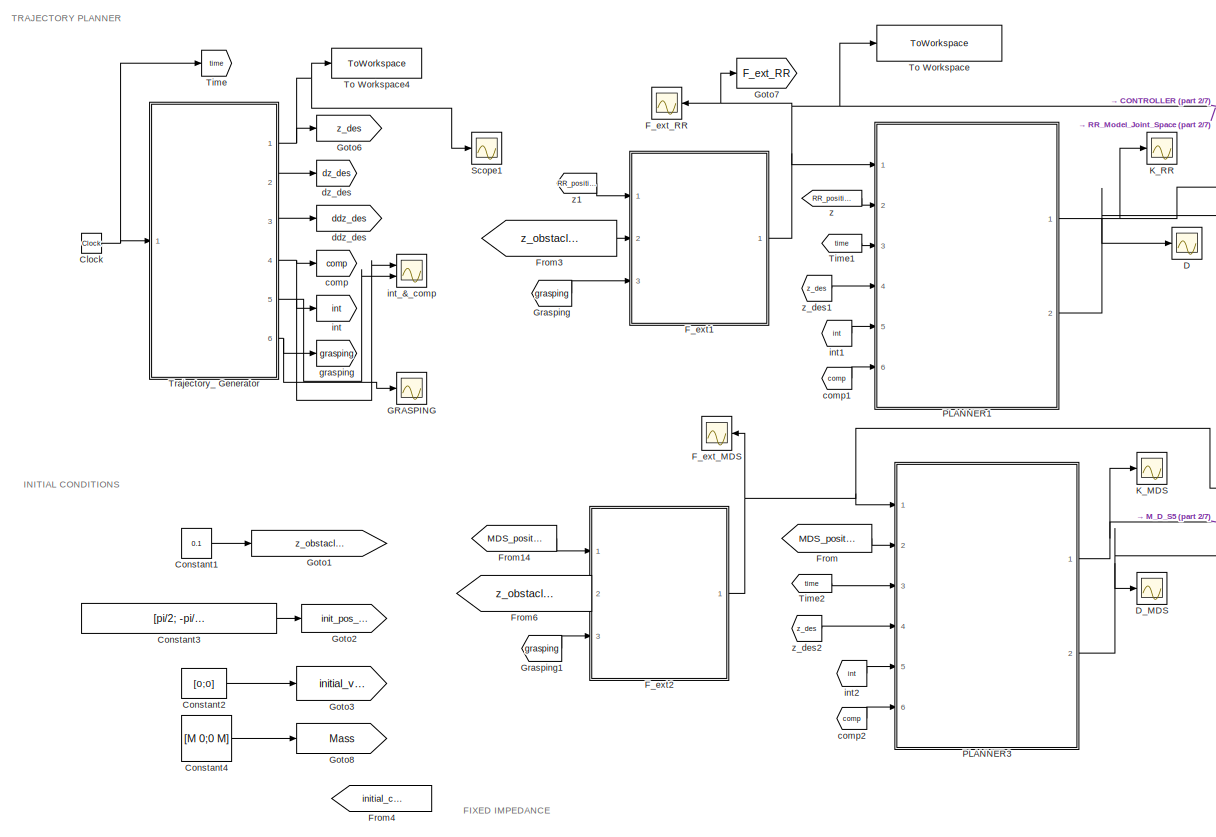
[diagram: root canvas - part 1/7, top left region]
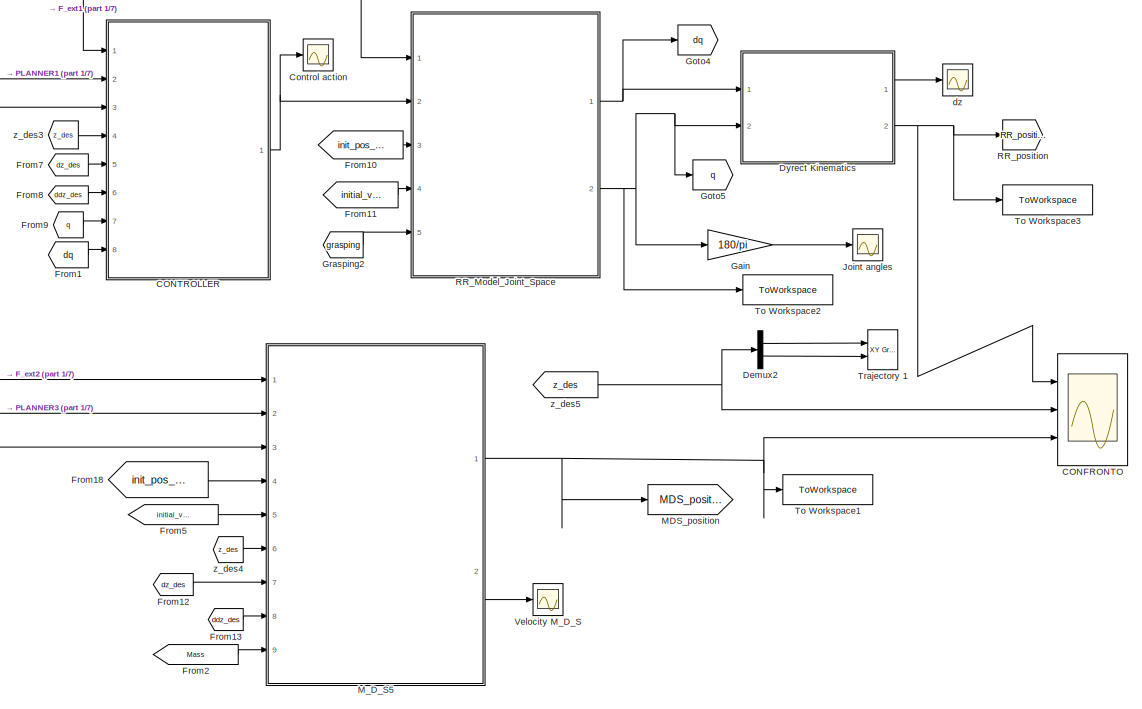
[diagram: root canvas - part 2/7, top right region]
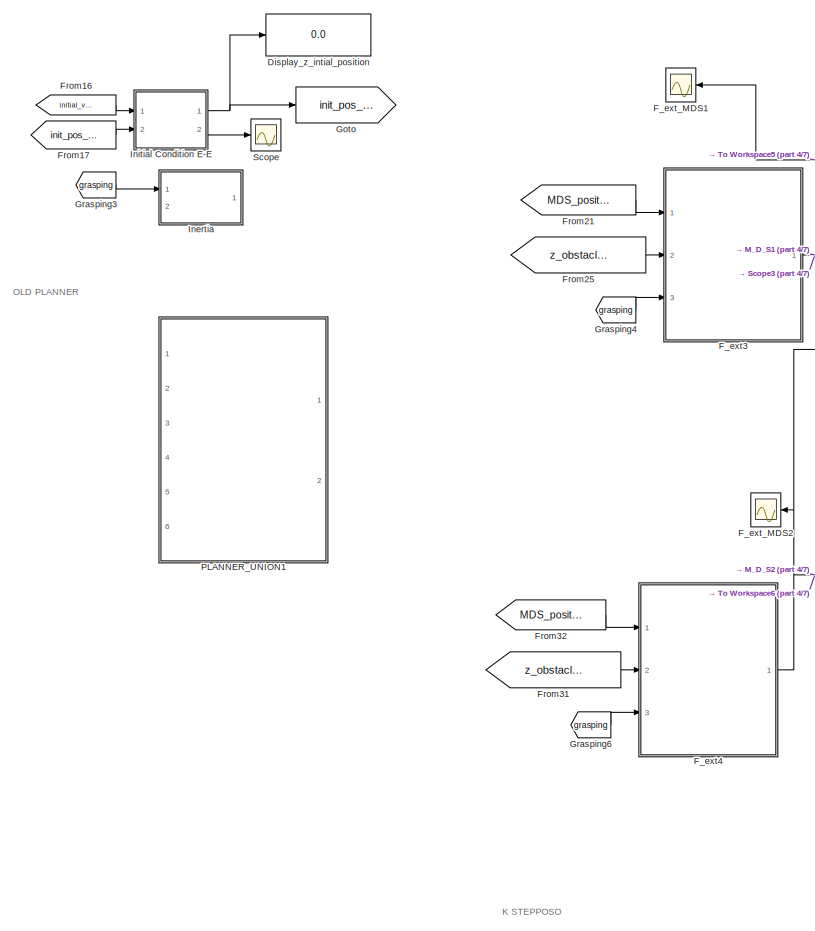
[diagram: root canvas - part 3/7, middle left region]
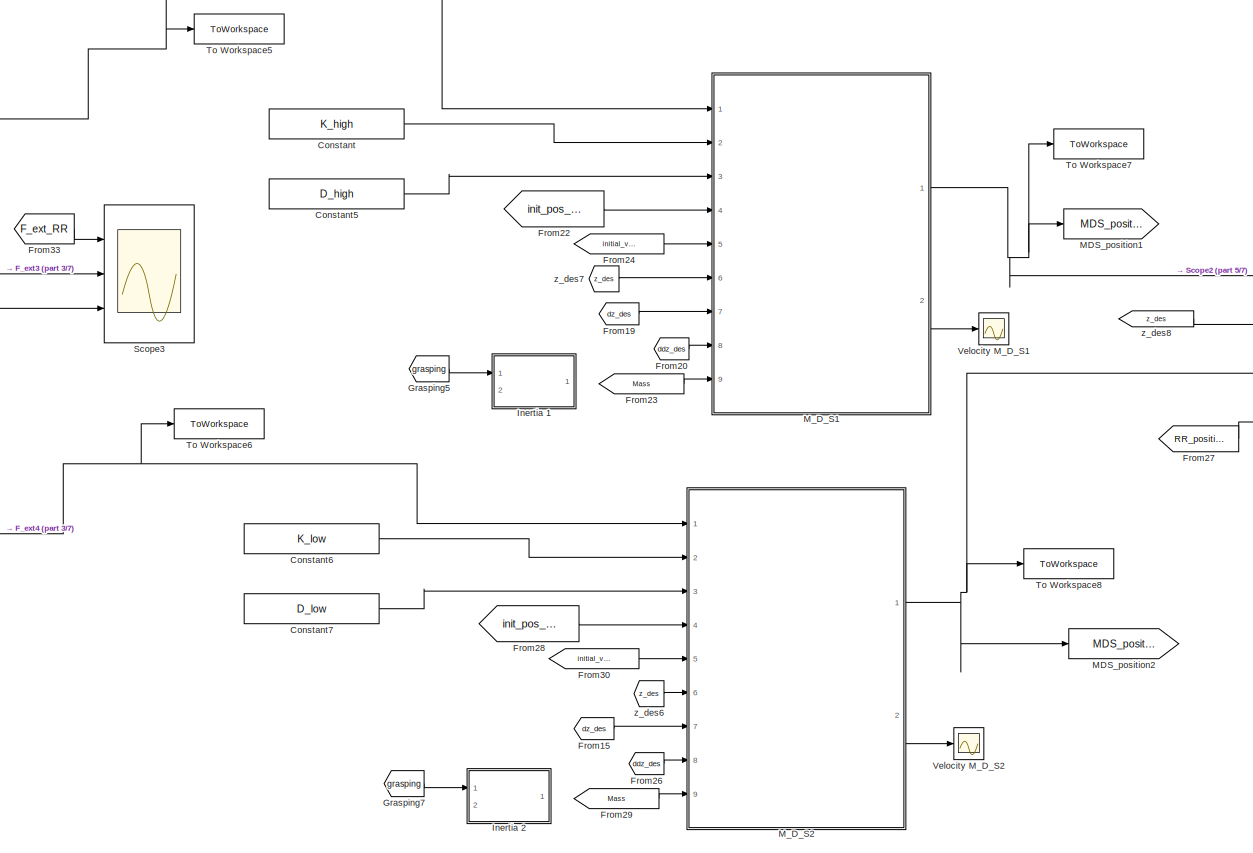
[diagram: root canvas - part 4/7, central region]
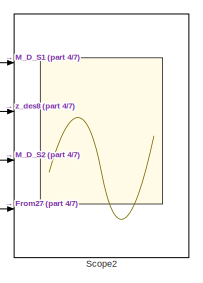
[diagram: root canvas - part 5/7, middle right region]
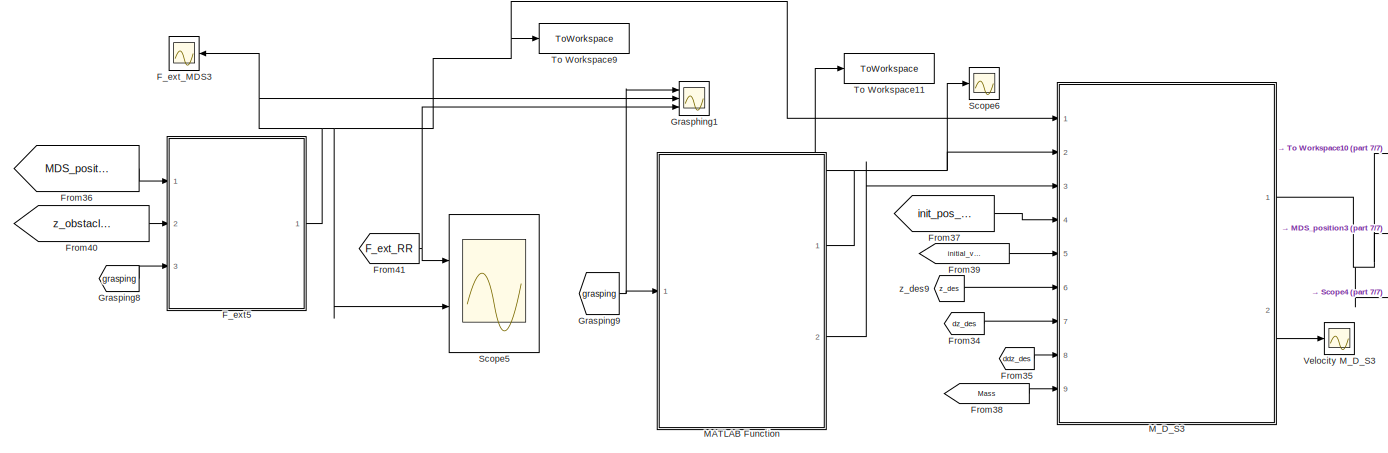
[diagram: root canvas - part 6/7, bottom center region]
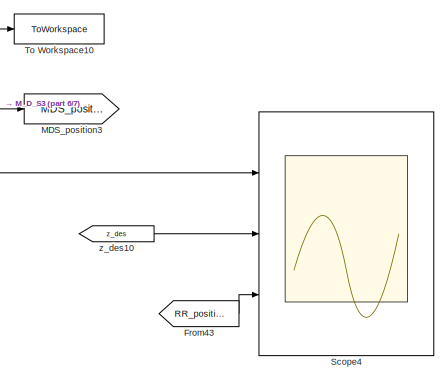
[diagram: root canvas - part 7/7, bottom right region]
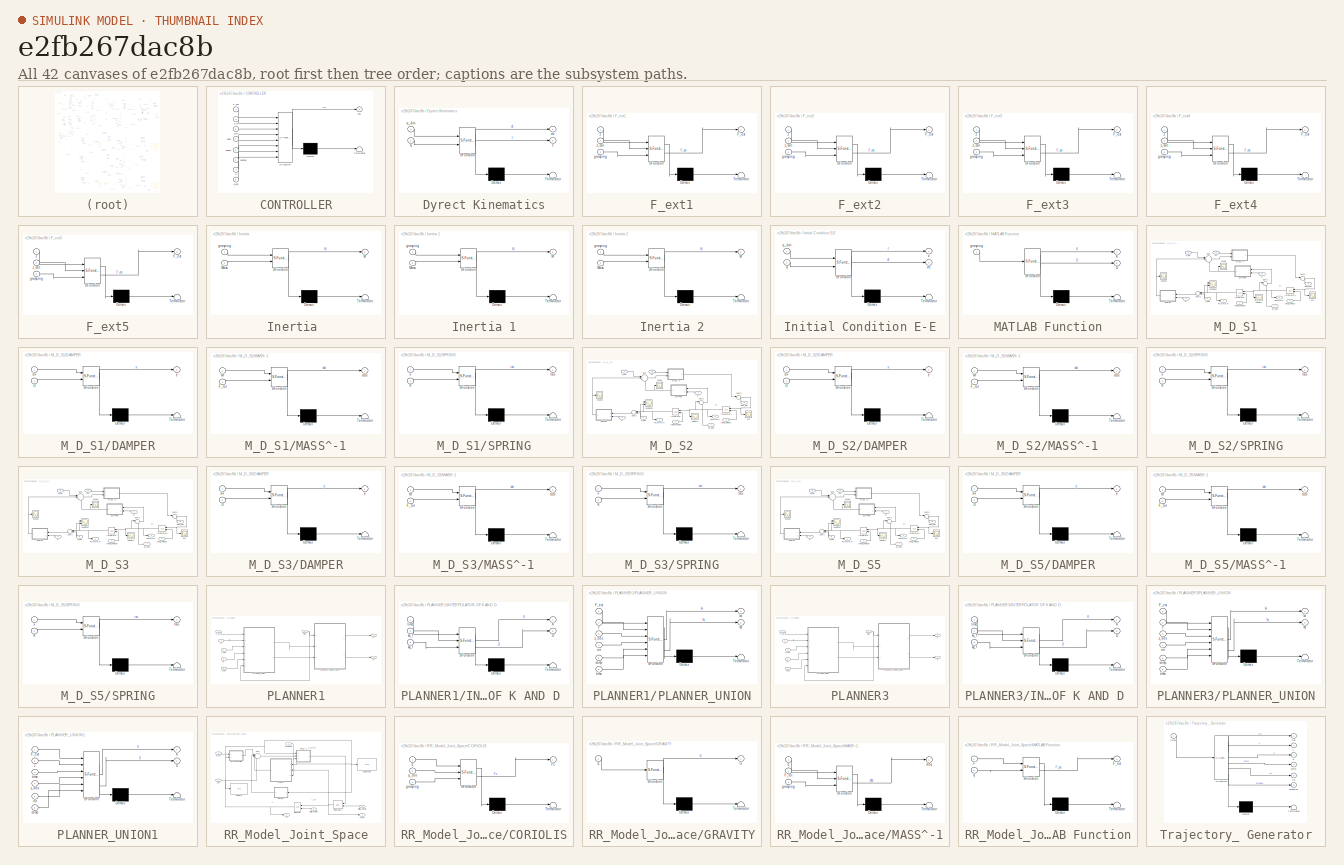
[diagram: thumbnail index - all 42 canvases of the model, root first then tree order]
MODEL slx_e2fb267dac8b
KIND model
CONFIG AbsTol = auto
CONFIG EnableMultiTasking = off
CONFIG FixedStep = 0.001
CONFIG MaxStep = auto
CONFIG MinStep = auto
CONFIG RelTol = 1e-3
CONFIG SampleTimeConstraint = Unconstrained
CONFIG SolverName = FixedStepAuto
CONFIG StartTime = 0.0
CONFIG StopTime = 5
BLOCK [Scope] CONFRONTO
  Floating = off
  NumInputPorts = 3
  Ports = [3]
  ScopeSpecificationString = Simulink.scopes.TimeScopeBlockCfg('CurrentConfiguration', extmgr.ConfigurationSet(extmgr.Configuration('Core','General UI',true),extmgr.Configuration('Core','Source UI',true),extmgr.Configuration('Sources','WiredSimulink',true,'DataLoggingVariableName','ScopeData2'),extmgr.Configuration('Visuals','Time Domain',true,'SerializedDisplays',{struct('MinYLimReal','-0.1875','MaxYLimReal','1.1875','YLabel...<+1674ch>
BLOCK [SubSystem] CONTROLLER
  ErrorFcn = Stateflow.Translate.translate
  PermitHierarchicalResolution = ExplicitOnly
  Ports = [8, 1]
  RequestExecContextInheritance = off
  SFBlockType = MATLAB Function
  TreatAsAtomicUnit = on
BLOCK [Demux] CONTROLLER/ Demux 
  Outputs = 1
  Ports = [1, 1]
BLOCK [S-Function] CONTROLLER/ SFunction 
  EnableBusSupport = on
  FunctionName = sf_sfun
  Parameters = M
  PortCounts = [8 2]
  Ports = [8, 2]
  SFcnIsStateOwnerBlock = off
  SFunctionDeploymentMode = off
  Tag = Stateflow S-Function 13
BLOCK [Terminator] CONTROLLER/ Terminator 
BLOCK [Inport] CONTROLLER/Dm
  Port = 3
BLOCK [Inport] CONTROLLER/F_ext
BLOCK [Inport] CONTROLLER/Km
  Port = 2
BLOCK [Inport] CONTROLLER/ddzdes
  Port = 6
BLOCK [Inport] CONTROLLER/dzdes
  Port = 5
BLOCK [Inport] CONTROLLER/q
  Port = 7
BLOCK [Inport] CONTROLLER/q_dot
  Port = 8
BLOCK [Outport] CONTROLLER/tau
BLOCK [Inport] CONTROLLER/zdes
  Port = 4
BLOCK [Clock] Clock
BLOCK [Constant] Constant
  Commented = on
  Value = K_high
BLOCK [Constant] Constant1
  Value = 0.1
BLOCK [Constant] Constant2
  Value = [0;0]
BLOCK [Constant] Constant3
  Value = [pi/2; -pi/2]
BLOCK [Constant] Constant4
  Value = [M 0;0 M]
BLOCK [Constant] Constant5
  Commented = on
  Value = D_high
BLOCK [Constant] Constant6
  Commented = on
  Value = K_low
BLOCK [Constant] Constant7
  Commented = on
  Value = D_low
BLOCK [Scope] Control action
  Floating = off
  NumInputPorts = 1
  Ports = [1]
  ScopeSpecificationString = Simulink.scopes.TimeScopeBlockCfg('CurrentConfiguration', extmgr.ConfigurationSet(extmgr.Configuration('Core','General UI',true),extmgr.Configuration('Core','Source UI',true),extmgr.Configuration('Sources','WiredSimulink',true,'DataLoggingVariableName','ScopeData16'),extmgr.Configuration('Visuals','Time Domain',true,'SerializedDisplays',{struct('MinYLimReal','-353.38379','MaxYLimReal','314.35842',...<+1470ch>
BLOCK [Scope] D
  Floating = off
  NumInputPorts = 1
  Ports = [1]
  ScopeSpecificationString = Simulink.scopes.TimeScopeBlockCfg('CurrentConfiguration', extmgr.ConfigurationSet(extmgr.Configuration('Core','General UI',true),extmgr.Configuration('Core','Source UI',true),extmgr.Configuration('Sources','WiredSimulink',true,'DataLoggingVariableName','ScopeData12'),extmgr.Configuration('Visuals','Time Domain',true,'SerializedDisplays',{struct('MinYLimReal','-2.47614','MaxYLimReal','22.28522','YL...<+1446ch>
BLOCK [Scope] D_MDS
  Floating = off
  NumInputPorts = 1
  Ports = [1]
  ScopeSpecificationString = Simulink.scopes.TimeScopeBlockCfg('CurrentConfiguration', extmgr.ConfigurationSet(extmgr.Configuration('Core','General UI',true),extmgr.Configuration('Core','Source UI',true),extmgr.Configuration('Sources','WiredSimulink',true,'DataLoggingVariableName','ScopeData3'),extmgr.Configuration('Visuals','Time Domain',true,'SerializedDisplays',{struct('MinYLimReal','-7.83023','MaxYLimReal','70.47207','YLa...<+1469ch>
BLOCK [Demux] Demux2
  Commented = on
  Outputs = 2
  Ports = [1, 2]
BLOCK [Display] Display_z_intial_position
  Decimation = 1
  Ports = [1]
BLOCK [SubSystem] Dyrect Kinematics
  ErrorFcn = Stateflow.Translate.translate
  PermitHierarchicalResolution = ExplicitOnly
  Ports = [2, 2]
  RequestExecContextInheritance = off
  SFBlockType = MATLAB Function
  TreatAsAtomicUnit = on
BLOCK [Demux] Dyrect Kinematics/ Demux 
  Outputs = 1
  Ports = [1, 1]
BLOCK [S-Function] Dyrect Kinematics/ SFunction 
  EnableBusSupport = on
  FunctionName = sf_sfun
  Parameters = l1,l2
  PortCounts = [2 3]
  Ports = [2, 3]
  SFcnIsStateOwnerBlock = off
  SFunctionDeploymentMode = off
  Tag = Stateflow S-Function 6
BLOCK [Terminator] Dyrect Kinematics/ Terminator 
BLOCK [Outport] Dyrect Kinematics/dz
BLOCK [Inport] Dyrect Kinematics/q
  Port = 2
BLOCK [Inport] Dyrect Kinematics/q_dot
BLOCK [Outport] Dyrect Kinematics/z
  Port = 2
BLOCK [SubSystem] F_ext1
  ErrorFcn = Stateflow.Translate.translate
  PermitHierarchicalResolution = ExplicitOnly
  Ports = [3, 1]
  RequestExecContextInheritance = off
  SFBlockType = MATLAB Function
  TreatAsAtomicUnit = on
BLOCK [Demux] F_ext1/ Demux 
  Outputs = 1
  Ports = [1, 1]
BLOCK [S-Function] F_ext1/ SFunction 
  EnableBusSupport = on
  FunctionName = sf_sfun
  Parameters = g,mass_can
  PortCounts = [3 2]
  Ports = [3, 2]
  SFcnIsStateOwnerBlock = off
  SFunctionDeploymentMode = off
  Tag = Stateflow S-Function 8
BLOCK [Terminator] F_ext1/ Terminator 
BLOCK [Outport] F_ext1/F_ext
BLOCK [Inport] F_ext1/grasping
  Port = 3
BLOCK [Inport] F_ext1/z
BLOCK [Inport] F_ext1/z_can
  Port = 2
BLOCK [SubSystem] F_ext2
  ErrorFcn = Stateflow.Translate.translate
  PermitHierarchicalResolution = ExplicitOnly
  Ports = [3, 1]
  RequestExecContextInheritance = off
  SFBlockType = MATLAB Function
  TreatAsAtomicUnit = on
BLOCK [Demux] F_ext2/ Demux 
  Outputs = 1
  Ports = [1, 1]
BLOCK [S-Function] F_ext2/ SFunction 
  EnableBusSupport = on
  FunctionName = sf_sfun
  Parameters = g,mass_can
  PortCounts = [3 2]
  Ports = [3, 2]
  SFcnIsStateOwnerBlock = off
  SFunctionDeploymentMode = off
  Tag = Stateflow S-Function 1
BLOCK [Terminator] F_ext2/ Terminator 
BLOCK [Outport] F_ext2/F_ext
BLOCK [Inport] F_ext2/grasping
  Port = 3
BLOCK [Inport] F_ext2/z
BLOCK [Inport] F_ext2/z_can
  Port = 2
BLOCK [SubSystem] F_ext3
  Commented = on
  ErrorFcn = Stateflow.Translate.translate
  PermitHierarchicalResolution = ExplicitOnly
  Ports = [3, 1]
  RequestExecContextInheritance = off
  SFBlockType = MATLAB Function
  TreatAsAtomicUnit = on
BLOCK [Demux] F_ext3/ Demux 
  Outputs = 1
  Ports = [1, 1]
BLOCK [S-Function] F_ext3/ SFunction 
  EnableBusSupport = on
  FunctionName = sf_sfun
  Parameters = g,mass_can
  PortCounts = [3 2]
  Ports = [3, 2]
  SFcnIsStateOwnerBlock = off
  SFunctionDeploymentMode = off
  Tag = Stateflow S-Function 2
BLOCK [Terminator] F_ext3/ Terminator 
BLOCK [Outport] F_ext3/F_ext
BLOCK [Inport] F_ext3/grasping
  Port = 3
BLOCK [Inport] F_ext3/z
BLOCK [Inport] F_ext3/z_can
  Port = 2
BLOCK [SubSystem] F_ext4
  Commented = on
  ErrorFcn = Stateflow.Translate.translate
  PermitHierarchicalResolution = ExplicitOnly
  Ports = [3, 1]
  RequestExecContextInheritance = off
  SFBlockType = MATLAB Function
  TreatAsAtomicUnit = on
BLOCK [Demux] F_ext4/ Demux 
  Outputs = 1
  Ports = [1, 1]
BLOCK [S-Function] F_ext4/ SFunction 
  EnableBusSupport = on
  FunctionName = sf_sfun
  Parameters = g,mass_can
  PortCounts = [3 2]
  Ports = [3, 2]
  SFcnIsStateOwnerBlock = off
  SFunctionDeploymentMode = off
  Tag = Stateflow S-Function 25
BLOCK [Terminator] F_ext4/ Terminator 
BLOCK [Outport] F_ext4/F_ext
BLOCK [Inport] F_ext4/grasping
  Port = 3
BLOCK [Inport] F_ext4/z
BLOCK [Inport] F_ext4/z_can
  Port = 2
BLOCK [SubSystem] F_ext5
  ErrorFcn = Stateflow.Translate.translate
  PermitHierarchicalResolution = ExplicitOnly
  Ports = [3, 1]
  RequestExecContextInheritance = off
  SFBlockType = MATLAB Function
  TreatAsAtomicUnit = on
BLOCK [Demux] F_ext5/ Demux 
  Outputs = 1
  Ports = [1, 1]
BLOCK [S-Function] F_ext5/ SFunction 
  EnableBusSupport = on
  FunctionName = sf_sfun
  Parameters = g,mass_can
  PortCounts = [3 2]
  Ports = [3, 2]
  SFcnIsStateOwnerBlock = off
  SFunctionDeploymentMode = off
  Tag = Stateflow S-Function 30
BLOCK [Terminator] F_ext5/ Terminator 
BLOCK [Outport] F_ext5/F_ext
BLOCK [Inport] F_ext5/grasping
  Port = 3
BLOCK [Inport] F_ext5/z
BLOCK [Inport] F_ext5/z_can
  Port = 2
BLOCK [Scope] F_ext_MDS
  Floating = off
  NameLocation = top
  NumInputPorts = 1
  Ports = [1]
  ScopeSpecificationString = Simulink.scopes.TimeScopeBlockCfg('CurrentConfiguration', extmgr.ConfigurationSet(extmgr.Configuration('Core','General UI',true),extmgr.Configuration('Core','Source UI',true),extmgr.Configuration('Sources','WiredSimulink',true,'DataLoggingVariableName','ScopeData4'),extmgr.Configuration('Visuals','Time Domain',true,'SerializedDisplays',{struct('MinYLimReal','-7.60626','MaxYLimReal','19.40633','YLa...<+1580ch>
BLOCK [Scope] F_ext_MDS1
  Commented = on
  Floating = off
  NameLocation = top
  NumInputPorts = 1
  Ports = [1]
  ScopeSpecificationString = Simulink.scopes.TimeScopeBlockCfg('CurrentConfiguration', extmgr.ConfigurationSet(extmgr.Configuration('Core','General UI',true),extmgr.Configuration('Core','Source UI',true),extmgr.Configuration('Sources','WiredSimulink',true,'DataLoggingVariableName','ScopeData2'),extmgr.Configuration('Visuals','Time Domain',true,'SerializedDisplays',{struct('MinYLimReal','-7.60626','MaxYLimReal','19.40633','YLa...<+1580ch>
BLOCK [Scope] F_ext_MDS2
  Commented = on
  Floating = off
  NameLocation = top
  NumInputPorts = 1
  Ports = [1]
  ScopeSpecificationString = Simulink.scopes.TimeScopeBlockCfg('CurrentConfiguration', extmgr.ConfigurationSet(extmgr.Configuration('Core','General UI',true),extmgr.Configuration('Core','Source UI',true),extmgr.Configuration('Sources','WiredSimulink',true,'DataLoggingVariableName','ScopeData1'),extmgr.Configuration('Visuals','Time Domain',true,'SerializedDisplays',{struct('MinYLimReal','-7.60626','MaxYLimReal','19.40633','YLa...<+1580ch>
BLOCK [Scope] F_ext_MDS3
  Floating = off
  NameLocation = top
  NumInputPorts = 1
  Ports = [1]
  ScopeSpecificationString = Simulink.scopes.TimeScopeBlockCfg('CurrentConfiguration', extmgr.ConfigurationSet(extmgr.Configuration('Core','General UI',true),extmgr.Configuration('Core','Source UI',true),extmgr.Configuration('Sources','WiredSimulink',true,'DataLoggingVariableName','ScopeData1'),extmgr.Configuration('Visuals','Time Domain',true,'SerializedDisplays',{struct('MinYLimReal','-7.60626','MaxYLimReal','19.40633','YLa...<+1580ch>
BLOCK [Scope] F_ext_RR
  Floating = off
  NumInputPorts = 1
  Ports = [1]
  ScopeSpecificationString = Simulink.scopes.TimeScopeBlockCfg('CurrentConfiguration', extmgr.ConfigurationSet(extmgr.Configuration('Core','General UI',true),extmgr.Configuration('Core','Source UI',true),extmgr.Configuration('Sources','WiredSimulink',true),extmgr.Configuration('Visuals','Time Domain',true,'SerializedDisplays',{struct('MinYLimReal','-7.60626','MaxYLimReal','19.40633','YLabelReal','','MinYLimMag','0.00000','Max...<+1490ch>
BLOCK [From] From
  GotoTag = MDS_position
BLOCK [From] From1
  GotoTag = dq
BLOCK [From] From10
  GotoTag = init_pos_RR
BLOCK [From] From11
  GotoTag = initial_vel
BLOCK [From] From12
  GotoTag = dz_des
  TagVisibility = global
BLOCK [From] From13
  GotoTag = ddz_des
BLOCK [From] From14
  GotoTag = MDS_position
BLOCK [From] From15
  Commented = on
  GotoTag = dz_des
  TagVisibility = global
BLOCK [From] From16
  GotoTag = initial_vel
BLOCK [From] From17
  GotoTag = init_pos_RR
BLOCK [From] From18
  GotoTag = init_pos_MDS
BLOCK [From] From19
  Commented = on
  GotoTag = dz_des
  TagVisibility = global
BLOCK [From] From2
  GotoTag = Mass
BLOCK [From] From20
  Commented = on
  GotoTag = ddz_des
BLOCK [From] From21
  Commented = on
  GotoTag = MDS_position_high
BLOCK [From] From22
  Commented = on
  GotoTag = init_pos_MDS
BLOCK [From] From23
  Commented = on
  GotoTag = Mass
BLOCK [From] From24
  Commented = on
  GotoTag = initial_vel
BLOCK [From] From25
  Commented = on
  GotoTag = z_obstacle_for_interaction
BLOCK [From] From26
  Commented = on
  GotoTag = ddz_des
BLOCK [From] From27
  Commented = on
  GotoTag = RR_position
BLOCK [From] From28
  Commented = on
  GotoTag = init_pos_MDS
BLOCK [From] From29
  Commented = on
  GotoTag = Mass
BLOCK [From] From3
  GotoTag = z_obstacle_for_interaction
BLOCK [From] From30
  Commented = on
  GotoTag = initial_vel
BLOCK [From] From31
  Commented = on
  GotoTag = z_obstacle_for_interaction
BLOCK [From] From32
  Commented = on
  GotoTag = MDS_position_low
BLOCK [From] From33
  Commented = on
  GotoTag = F_ext_RR
BLOCK [From] From34
  GotoTag = dz_des
  TagVisibility = global
BLOCK [From] From35
  GotoTag = ddz_des
BLOCK [From] From36
  GotoTag = MDS_position_stepposo
BLOCK [From] From37
  GotoTag = init_pos_MDS
BLOCK [From] From38
  GotoTag = Mass
BLOCK [From] From39
  GotoTag = initial_vel
BLOCK [From] From4
  Commented = on
  GotoTag = initial_condition
BLOCK [From] From40
  GotoTag = z_obstacle_for_interaction
BLOCK [From] From41
  GotoTag = F_ext_RR
BLOCK [From] From43
  GotoTag = RR_position
BLOCK [From] From5
  GotoTag = initial_vel
BLOCK [From] From6
  GotoTag = z_obstacle_for_interaction
BLOCK [From] From7
  GotoTag = dz_des
  TagVisibility = global
BLOCK [From] From8
  GotoTag = ddz_des
BLOCK [From] From9
  GotoTag = q
BLOCK [Scope] GRASPING
  Floating = off
  NumInputPorts = 1
  Ports = [1]
  ScopeSpecificationString = Simulink.scopes.TimeScopeBlockCfg('CurrentConfiguration', extmgr.ConfigurationSet(extmgr.Configuration('Core','General UI',true),extmgr.Configuration('Core','Source UI',true),extmgr.Configuration('Sources','WiredSimulink',true,'DataLoggingVariableName','ScopeData1'),extmgr.Configuration('Visuals','Time Domain',true,'SerializedDisplays',{struct('MinYLimReal','-0.125','MaxYLimReal','1.125','YLabelRe...<+1409ch>
BLOCK [Gain] Gain
  Gain = 180/pi
BLOCK [Goto] Goto
  GotoTag = init_pos_MDS
BLOCK [Goto] Goto1
  GotoTag = z_obstacle_for_interaction
BLOCK [Goto] Goto2
  GotoTag = init_pos_RR
BLOCK [Goto] Goto3
  GotoTag = initial_vel
BLOCK [Goto] Goto4
  GotoTag = dq
BLOCK [Goto] Goto5
  GotoTag = q
BLOCK [Goto] Goto6
  GotoTag = z_des
BLOCK [Goto] Goto7
  GotoTag = F_ext_RR
BLOCK [Goto] Goto8
  GotoTag = Mass
BLOCK [Scope] Grasphing1
  Floating = off
  NumInputPorts = 3
  Ports = [3]
  ScopeSpecificationString = Simulink.scopes.TimeScopeBlockCfg('CurrentConfiguration', extmgr.ConfigurationSet(extmgr.Configuration('Core','General UI',true),extmgr.Configuration('Core','Source UI',true),extmgr.Configuration('Sources','WiredSimulink',true,'DataLoggingVariableName','ScopeData5'),extmgr.Configuration('Visuals','Time Domain',true,'SerializedDisplays',{struct('MinYLimReal','-0.125','MaxYLimReal','1.125','YLabelRe...<+2063ch>
BLOCK [From] Grasping
  GotoTag = grasping
BLOCK [From] Grasping1
  GotoTag = grasping
BLOCK [From] Grasping2
  GotoTag = grasping
BLOCK [From] Grasping3
  Commented = on
  GotoTag = grasping
BLOCK [From] Grasping4
  Commented = on
  GotoTag = grasping
BLOCK [From] Grasping5
  Commented = on
  GotoTag = grasping
BLOCK [From] Grasping6
  Commented = on
  GotoTag = grasping
BLOCK [From] Grasping7
  Commented = on
  GotoTag = grasping
BLOCK [From] Grasping8
  GotoTag = grasping
BLOCK [From] Grasping9
  GotoTag = grasping
BLOCK [SubSystem] Inertia 
  Commented = on
  ErrorFcn = Stateflow.Translate.translate
  PermitHierarchicalResolution = ExplicitOnly
  Ports = [2, 1]
  RequestExecContextInheritance = off
  SFBlockType = MATLAB Function
  TreatAsAtomicUnit = on
BLOCK [Demux] Inertia / Demux 
  Outputs = 1
  Ports = [1, 1]
BLOCK [S-Function] Inertia / SFunction 
  EnableBusSupport = on
  FunctionName = sf_sfun
  Parameters = mass_can
  PortCounts = [2 2]
  Ports = [2, 2]
  SFcnIsStateOwnerBlock = off
  SFunctionDeploymentMode = off
  Tag = Stateflow S-Function 12
BLOCK [Terminator] Inertia / Terminator 
BLOCK [Outport] Inertia /M
BLOCK [Inport] Inertia /Mass
  Port = 2
BLOCK [Inport] Inertia /grasping
BLOCK [SubSystem] Inertia 1
  Commented = on
  ErrorFcn = Stateflow.Translate.translate
  PermitHierarchicalResolution = ExplicitOnly
  Ports = [2, 1]
  RequestExecContextInheritance = off
  SFBlockType = MATLAB Function
  TreatAsAtomicUnit = on
BLOCK [Demux] Inertia 1/ Demux 
  Outputs = 1
  Ports = [1, 1]
BLOCK [S-Function] Inertia 1/ SFunction 
  EnableBusSupport = on
  FunctionName = sf_sfun
  Parameters = mass_can
  PortCounts = [2 2]
  Ports = [2, 2]
  SFcnIsStateOwnerBlock = off
  SFunctionDeploymentMode = off
  Tag = Stateflow S-Function 15
BLOCK [Terminator] Inertia 1/ Terminator 
BLOCK [Outport] Inertia 1/M
BLOCK [Inport] Inertia 1/Mass
  Port = 2
BLOCK [Inport] Inertia 1/grasping
BLOCK [SubSystem] Inertia 2
  Commented = on
  ErrorFcn = Stateflow.Translate.translate
  PermitHierarchicalResolution = ExplicitOnly
  Ports = [2, 1]
  RequestExecContextInheritance = off
  SFBlockType = MATLAB Function
  TreatAsAtomicUnit = on
BLOCK [Demux] Inertia 2/ Demux 
  Outputs = 1
  Ports = [1, 1]
BLOCK [S-Function] Inertia 2/ SFunction 
  EnableBusSupport = on
  FunctionName = sf_sfun
  Parameters = mass_can
  PortCounts = [2 2]
  Ports = [2, 2]
  SFcnIsStateOwnerBlock = off
  SFunctionDeploymentMode = off
  Tag = Stateflow S-Function 26
BLOCK [Terminator] Inertia 2/ Terminator 
BLOCK [Outport] Inertia 2/M
BLOCK [Inport] Inertia 2/Mass
  Port = 2
BLOCK [Inport] Inertia 2/grasping
BLOCK [SubSystem] Initial Condition E-E
  ErrorFcn = Stateflow.Translate.translate
  PermitHierarchicalResolution = ExplicitOnly
  Ports = [2, 2]
  RequestExecContextInheritance = off
  SFBlockType = MATLAB Function
  TreatAsAtomicUnit = on
BLOCK [Demux] Initial Condition E-E/ Demux 
  Outputs = 1
  Ports = [1, 1]
BLOCK [S-Function] Initial Condition E-E/ SFunction 
  EnableBusSupport = on
  FunctionName = sf_sfun
  Parameters = l1,l2
  PortCounts = [2 3]
  Ports = [2, 3]
  SFcnIsStateOwnerBlock = off
  SFunctionDeploymentMode = off
  Tag = Stateflow S-Function 14
BLOCK [Terminator] Initial Condition E-E/ Terminator 
BLOCK [Outport] Initial Condition E-E/dz
  Port = 2
BLOCK [Inport] Initial Condition E-E/q
  Port = 2
BLOCK [Inport] Initial Condition E-E/q_dot
BLOCK [Outport] Initial Condition E-E/z
BLOCK [Scope] Joint angles
  Floating = off
  NumInputPorts = 1
  Ports = [1]
  ScopeSpecificationString = Simulink.scopes.TimeScopeBlockCfg('CurrentConfiguration', extmgr.ConfigurationSet(extmgr.Configuration('Core','General UI',true),extmgr.Configuration('Core','Source UI',true),extmgr.Configuration('Sources','WiredSimulink',true,'DataLoggingVariableName','ScopeData15'),extmgr.Configuration('Visuals','Time Domain',true,'SerializedDisplays',{struct('MinYLimReal','20.81645','MaxYLimReal','131.7396','YL...<+1452ch>
BLOCK [Scope] K_MDS
  Floating = off
  NumInputPorts = 1
  Ports = [1]
  ScopeSpecificationString = Simulink.scopes.TimeScopeBlockCfg('CurrentConfiguration', extmgr.ConfigurationSet(extmgr.Configuration('Core','General UI',true),extmgr.Configuration('Core','Source UI',true),extmgr.Configuration('Sources','WiredSimulink',true,'DataLoggingVariableName','ScopeData2'),extmgr.Configuration('Visuals','Time Domain',true,'SerializedDisplays',{struct('MinYLimReal','-61.3125','MaxYLimReal','551.8125','YLa...<+1601ch>
BLOCK [Scope] K_RR
  Floating = off
  NumInputPorts = 1
  Ports = [1]
  ScopeSpecificationString = Simulink.scopes.TimeScopeBlockCfg('CurrentConfiguration', extmgr.ConfigurationSet(extmgr.Configuration('Core','General UI',true),extmgr.Configuration('Core','Source UI',true),extmgr.Configuration('Sources','WiredSimulink',true,'DataLoggingVariableName','ScopeData13'),extmgr.Configuration('Visuals','Time Domain',true,'SerializedDisplays',{struct('MinYLimReal','-20.50495','MaxYLimReal','63.13366','Y...<+1600ch>
BLOCK [SubSystem] MATLAB Function
  ErrorFcn = Stateflow.Translate.translate
  PermitHierarchicalResolution = ExplicitOnly
  Ports = [1, 2]
  RequestExecContextInheritance = off
  SFBlockType = MATLAB Function
  TreatAsAtomicUnit = on
BLOCK [Demux] MATLAB Function/ Demux 
  Outputs = 1
  Ports = [1, 1]
BLOCK [S-Function] MATLAB Function/ SFunction 
  EnableBusSupport = on
  FunctionName = sf_sfun
  Parameters = M
  PortCounts = [1 3]
  Ports = [1, 3]
  SFcnIsStateOwnerBlock = off
  SFunctionDeploymentMode = off
  Tag = Stateflow S-Function 31
BLOCK [Terminator] MATLAB Function/ Terminator 
BLOCK [Outport] MATLAB Function/D
  Port = 2
BLOCK [Outport] MATLAB Function/K
BLOCK [Inport] MATLAB Function/grasping
BLOCK [Goto] MDS_position
  GotoTag = MDS_position
BLOCK [Goto] MDS_position1
  Commented = on
  GotoTag = MDS_position_high
BLOCK [Goto] MDS_position2
  Commented = on
  GotoTag = MDS_position_low
BLOCK [Goto] MDS_position3
  GotoTag = MDS_position_stepposo
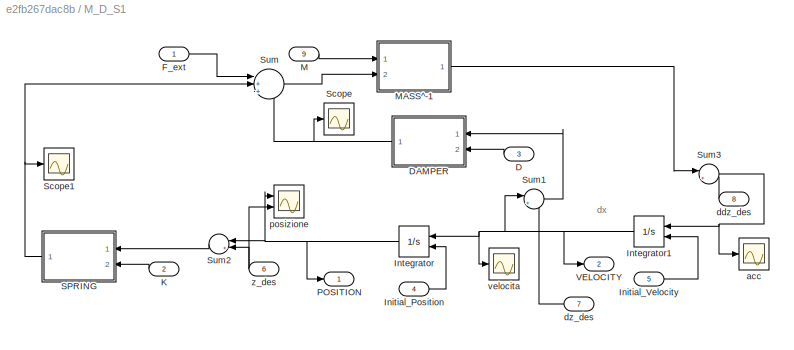
BLOCK [SubSystem] M_D_S1
  Commented = on
  Ports = [9, 2]
  RequestExecContextInheritance = off
BLOCK [Inport] M_D_S1/D
  Port = 3
BLOCK [SubSystem] M_D_S1/DAMPER
  ErrorFcn = Stateflow.Translate.translate
  PermitHierarchicalResolution = ExplicitOnly
  Ports = [2, 1]
  RequestExecContextInheritance = off
  SFBlockType = MATLAB Function
  TreatAsAtomicUnit = on
BLOCK [Demux] M_D_S1/DAMPER/ Demux 
  Outputs = 1
  Ports = [1, 1]
BLOCK [S-Function] M_D_S1/DAMPER/ SFunction 
  EnableBusSupport = on
  FunctionName = sf_sfun
  PortCounts = [2 2]
  Ports = [2, 2]
  SFcnIsStateOwnerBlock = off
  SFunctionDeploymentMode = off
  Tag = Stateflow S-Function 16
BLOCK [Terminator] M_D_S1/DAMPER/ Terminator 
BLOCK [Inport] M_D_S1/DAMPER/D
  Port = 2
BLOCK [Inport] M_D_S1/DAMPER/dx
BLOCK [Outport] M_D_S1/DAMPER/y
BLOCK [Inport] M_D_S1/F_ext
BLOCK [Inport] M_D_S1/Initial_Position
  Port = 4
BLOCK [Inport] M_D_S1/Initial_Velocity
  Port = 5
BLOCK [Integrator] M_D_S1/Integrator
  InitialConditionSource = external
  Ports = [2, 1]
BLOCK [Integrator] M_D_S1/Integrator1
  InitialConditionSource = external
  Ports = [2, 1]
BLOCK [Inport] M_D_S1/K
  Port = 2
BLOCK [Inport] M_D_S1/M
  Port = 9
BLOCK [SubSystem] M_D_S1/MASS^-1
  ErrorFcn = Stateflow.Translate.translate
  PermitHierarchicalResolution = ExplicitOnly
  Ports = [2, 1]
  RequestExecContextInheritance = off
  SFBlockType = MATLAB Function
  TreatAsAtomicUnit = on
BLOCK [Demux] M_D_S1/MASS^-1/ Demux 
  Outputs = 1
  Ports = [1, 1]
BLOCK [S-Function] M_D_S1/MASS^-1/ SFunction 
  EnableBusSupport = on
  FunctionName = sf_sfun
  PortCounts = [2 2]
  Ports = [2, 2]
  SFcnIsStateOwnerBlock = off
  SFunctionDeploymentMode = off
  Tag = Stateflow S-Function 20
BLOCK [Terminator] M_D_S1/MASS^-1/ Terminator 
BLOCK [Inport] M_D_S1/MASS^-1/F_tot
  Port = 2
BLOCK [Inport] M_D_S1/MASS^-1/M
BLOCK [Outport] M_D_S1/MASS^-1/ddx
BLOCK [Outport] M_D_S1/POSITION
BLOCK [SubSystem] M_D_S1/SPRING
  ErrorFcn = Stateflow.Translate.translate
  PermitHierarchicalResolution = ExplicitOnly
  Ports = [2, 1]
  RequestExecContextInheritance = off
  SFBlockType = MATLAB Function
  TreatAsAtomicUnit = on
BLOCK [Demux] M_D_S1/SPRING/ Demux 
  Outputs = 1
  Ports = [1, 1]
BLOCK [S-Function] M_D_S1/SPRING/ SFunction 
  EnableBusSupport = on
  FunctionName = sf_sfun
  PortCounts = [2 2]
  Ports = [2, 2]
  SFcnIsStateOwnerBlock = off
  SFunctionDeploymentMode = off
  Tag = Stateflow S-Function 24
BLOCK [Terminator] M_D_S1/SPRING/ Terminator 
BLOCK [Inport] M_D_S1/SPRING/K
  Port = 2
BLOCK [Outport] M_D_S1/SPRING/tau
BLOCK [Inport] M_D_S1/SPRING/x
BLOCK [Scope] M_D_S1/Scope
  Floating = off
  NumInputPorts = 1
  Ports = [1]
  ScopeSpecificationString = Simulink.scopes.TimeScopeBlockCfg('CurrentConfiguration', extmgr.ConfigurationSet(extmgr.Configuration('Core','General UI',true),extmgr.Configuration('Core','Source UI',true),extmgr.Configuration('Sources','WiredSimulink',true,'DataLoggingVariableName','ScopeData15'),extmgr.Configuration('Visuals','Time Domain',true,'SerializedDisplays',{struct('MinYLimReal','-37.99931','MaxYLimReal','6.12026','YL...<+1429ch>  <repeated x4 — deduplicated; at blocks: Scope>
BLOCK [Scope] M_D_S1/Scope1
  Floating = off
  NumInputPorts = 1
  Ports = [1]
  ScopeSpecificationString = Simulink.scopes.TimeScopeBlockCfg('CurrentConfiguration', extmgr.ConfigurationSet(extmgr.Configuration('Core','General UI',true),extmgr.Configuration('Core','Source UI',true),extmgr.Configuration('Sources','WiredSimulink',true,'DataLoggingVariableName','ScopeData17'),extmgr.Configuration('Visuals','Time Domain',true,'SerializedDisplays',{struct('MinYLimReal','-42.49417','MaxYLimReal','4.72157','YL...<+1454ch>  <repeated x4 — deduplicated; at blocks: Scope1>
BLOCK [Sum] M_D_S1/Sum
  Inputs = |+++
  Ports = [3, 1]
BLOCK [Sum] M_D_S1/Sum1
  Inputs = |+-
  Ports = [2, 1]
BLOCK [Sum] M_D_S1/Sum2
  Inputs = |+-
  Ports = [2, 1]
BLOCK [Sum] M_D_S1/Sum3
  Inputs = |++
  Ports = [2, 1]
BLOCK [Outport] M_D_S1/VELOCITY
  Port = 2
BLOCK [Scope] M_D_S1/acc
  Floating = off
  NumInputPorts = 1
  Ports = [1]
  ScopeSpecificationString = Simulink.scopes.TimeScopeBlockCfg('CurrentConfiguration', extmgr.ConfigurationSet(extmgr.Configuration('Core','General UI',true),extmgr.Configuration('Core','Source UI',true),extmgr.Configuration('Sources','WiredSimulink',true,'DataLoggingVariableName','ScopeData6'),extmgr.Configuration('Visuals','Time Domain',true,'SerializedDisplays',{struct('MinYLimReal','-10.14929','MaxYLimReal','22.48721','YL...<+1470ch>  <repeated x4 — deduplicated; at blocks: acc>
BLOCK [Inport] M_D_S1/ddz_des
  Port = 8
BLOCK [Inport] M_D_S1/dz_des
  Port = 7
BLOCK [Scope] M_D_S1/posizione
  Floating = off
  NumInputPorts = 2
  Ports = [2]
  ScopeSpecificationString = Simulink.scopes.TimeScopeBlockCfg('CurrentConfiguration', extmgr.ConfigurationSet(extmgr.Configuration('Core','General UI',true),extmgr.Configuration('Core','Source UI',true),extmgr.Configuration('Sources','WiredSimulink',true,'DataLoggingVariableName','ScopeData8'),extmgr.Configuration('Visuals','Time Domain',true,'SerializedDisplays',{struct('MinYLimReal','-0.15023','MaxYLimReal','1.35207','YLab...<+1431ch>  <repeated x4 — deduplicated; at blocks: posizione>
BLOCK [Scope] M_D_S1/velocita
  Floating = off
  NumInputPorts = 1
  Ports = [1]
  ScopeSpecificationString = Simulink.scopes.TimeScopeBlockCfg('CurrentConfiguration', extmgr.ConfigurationSet(extmgr.Configuration('Core','General UI',true),extmgr.Configuration('Core','Source UI',true),extmgr.Configuration('Sources','WiredSimulink',true,'DataLoggingVariableName','ScopeData7'),extmgr.Configuration('Visuals','Time Domain',true,'SerializedDisplays',{struct('MinYLimReal','-0.64463','MaxYLimReal','2.63053','YLab...<+1417ch>  <repeated x4 — deduplicated; at blocks: velocita>
BLOCK [Inport] M_D_S1/z_des
  Port = 6
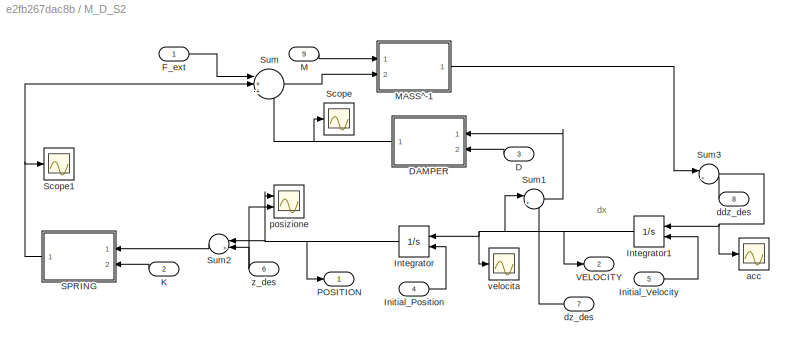
BLOCK [SubSystem] M_D_S2
  Commented = on
  Ports = [9, 2]
  RequestExecContextInheritance = off
BLOCK [Inport] M_D_S2/D
  Port = 3
BLOCK [SubSystem] M_D_S2/DAMPER
  ErrorFcn = Stateflow.Translate.translate
  PermitHierarchicalResolution = ExplicitOnly
  Ports = [2, 1]
  RequestExecContextInheritance = off
  SFBlockType = MATLAB Function
  TreatAsAtomicUnit = on
BLOCK [Demux] M_D_S2/DAMPER/ Demux 
  Outputs = 1
  Ports = [1, 1]
BLOCK [S-Function] M_D_S2/DAMPER/ SFunction 
  EnableBusSupport = on
  FunctionName = sf_sfun
  PortCounts = [2 2]
  Ports = [2, 2]
  SFcnIsStateOwnerBlock = off
  SFunctionDeploymentMode = off
  Tag = Stateflow S-Function 27
BLOCK [Terminator] M_D_S2/DAMPER/ Terminator 
BLOCK [Inport] M_D_S2/DAMPER/D
  Port = 2
BLOCK [Inport] M_D_S2/DAMPER/dx
BLOCK [Outport] M_D_S2/DAMPER/y
BLOCK [Inport] M_D_S2/F_ext
BLOCK [Inport] M_D_S2/Initial_Position
  Port = 4
BLOCK [Inport] M_D_S2/Initial_Velocity
  Port = 5
BLOCK [Integrator] M_D_S2/Integrator
  InitialConditionSource = external
  Ports = [2, 1]
BLOCK [Integrator] M_D_S2/Integrator1
  InitialConditionSource = external
  Ports = [2, 1]
BLOCK [Inport] M_D_S2/K
  Port = 2
BLOCK [Inport] M_D_S2/M
  Port = 9
BLOCK [SubSystem] M_D_S2/MASS^-1
  ErrorFcn = Stateflow.Translate.translate
  PermitHierarchicalResolution = ExplicitOnly
  Ports = [2, 1]
  RequestExecContextInheritance = off
  SFBlockType = MATLAB Function
  TreatAsAtomicUnit = on
BLOCK [Demux] M_D_S2/MASS^-1/ Demux 
  Outputs = 1
  Ports = [1, 1]
BLOCK [S-Function] M_D_S2/MASS^-1/ SFunction 
  EnableBusSupport = on
  FunctionName = sf_sfun
  PortCounts = [2 2]
  Ports = [2, 2]
  SFcnIsStateOwnerBlock = off
  SFunctionDeploymentMode = off
  Tag = Stateflow S-Function 28
BLOCK [Terminator] M_D_S2/MASS^-1/ Terminator 
BLOCK [Inport] M_D_S2/MASS^-1/F_tot
  Port = 2
BLOCK [Inport] M_D_S2/MASS^-1/M
BLOCK [Outport] M_D_S2/MASS^-1/ddx
BLOCK [Outport] M_D_S2/POSITION
BLOCK [SubSystem] M_D_S2/SPRING
  ErrorFcn = Stateflow.Translate.translate
  PermitHierarchicalResolution = ExplicitOnly
  Ports = [2, 1]
  RequestExecContextInheritance = off
  SFBlockType = MATLAB Function
  TreatAsAtomicUnit = on
BLOCK [Demux] M_D_S2/SPRING/ Demux 
  Outputs = 1
  Ports = [1, 1]
BLOCK [S-Function] M_D_S2/SPRING/ SFunction 
  EnableBusSupport = on
  FunctionName = sf_sfun
  PortCounts = [2 2]
  Ports = [2, 2]
  SFcnIsStateOwnerBlock = off
  SFunctionDeploymentMode = off
  Tag = Stateflow S-Function 29
BLOCK [Terminator] M_D_S2/SPRING/ Terminator 
BLOCK [Inport] M_D_S2/SPRING/K
  Port = 2
BLOCK [Outport] M_D_S2/SPRING/tau
BLOCK [Inport] M_D_S2/SPRING/x
BLOCK [Scope] M_D_S2/Scope
  Floating = off
  NumInputPorts = 1
  Ports = [1]
BLOCK [Scope] M_D_S2/Scope1
  Floating = off
  NumInputPorts = 1
  Ports = [1]
BLOCK [Sum] M_D_S2/Sum
  Inputs = |+++
  Ports = [3, 1]
BLOCK [Sum] M_D_S2/Sum1
  Inputs = |+-
  Ports = [2, 1]
BLOCK [Sum] M_D_S2/Sum2
  Inputs = |+-
  Ports = [2, 1]
BLOCK [Sum] M_D_S2/Sum3
  Inputs = |++
  Ports = [2, 1]
BLOCK [Outport] M_D_S2/VELOCITY
  Port = 2
BLOCK [Scope] M_D_S2/acc
  Floating = off
  NumInputPorts = 1
  Ports = [1]
BLOCK [Inport] M_D_S2/ddz_des
  Port = 8
BLOCK [Inport] M_D_S2/dz_des
  Port = 7
BLOCK [Scope] M_D_S2/posizione
  Floating = off
  NumInputPorts = 2
  Ports = [2]
BLOCK [Scope] M_D_S2/velocita
  Floating = off
  NumInputPorts = 1
  Ports = [1]
BLOCK [Inport] M_D_S2/z_des
  Port = 6
BLOCK [SubSystem] M_D_S3
  Ports = [9, 2]
  RequestExecContextInheritance = off
BLOCK [Inport] M_D_S3/D
  Port = 3
BLOCK [SubSystem] M_D_S3/DAMPER
  ErrorFcn = Stateflow.Translate.translate
  PermitHierarchicalResolution = ExplicitOnly
  Ports = [2, 1]
  RequestExecContextInheritance = off
  SFBlockType = MATLAB Function
  TreatAsAtomicUnit = on
BLOCK [Demux] M_D_S3/DAMPER/ Demux 
  Outputs = 1
  Ports = [1, 1]
BLOCK [S-Function] M_D_S3/DAMPER/ SFunction 
  EnableBusSupport = on
  FunctionName = sf_sfun
  PortCounts = [2 2]
  Ports = [2, 2]
  SFcnIsStateOwnerBlock = off
  SFunctionDeploymentMode = off
  Tag = Stateflow S-Function 32
BLOCK [Terminator] M_D_S3/DAMPER/ Terminator 
BLOCK [Inport] M_D_S3/DAMPER/D
  Port = 2
BLOCK [Inport] M_D_S3/DAMPER/dx
BLOCK [Outport] M_D_S3/DAMPER/y
BLOCK [Inport] M_D_S3/F_ext
BLOCK [Inport] M_D_S3/Initial_Position
  Port = 4
BLOCK [Inport] M_D_S3/Initial_Velocity
  Port = 5
BLOCK [Integrator] M_D_S3/Integrator
  InitialConditionSource = external
  Ports = [2, 1]
BLOCK [Integrator] M_D_S3/Integrator1
  InitialConditionSource = external
  Ports = [2, 1]
BLOCK [Inport] M_D_S3/K
  Port = 2
BLOCK [Inport] M_D_S3/M
  Port = 9
BLOCK [SubSystem] M_D_S3/MASS^-1
  ErrorFcn = Stateflow.Translate.translate
  PermitHierarchicalResolution = ExplicitOnly
  Ports = [2, 1]
  RequestExecContextInheritance = off
  SFBlockType = MATLAB Function
  TreatAsAtomicUnit = on
BLOCK [Demux] M_D_S3/MASS^-1/ Demux 
  Outputs = 1
  Ports = [1, 1]
BLOCK [S-Function] M_D_S3/MASS^-1/ SFunction 
  EnableBusSupport = on
  FunctionName = sf_sfun
  PortCounts = [2 2]
  Ports = [2, 2]
  SFcnIsStateOwnerBlock = off
  SFunctionDeploymentMode = off
  Tag = Stateflow S-Function 33
BLOCK [Terminator] M_D_S3/MASS^-1/ Terminator 
BLOCK [Inport] M_D_S3/MASS^-1/F_tot
  Port = 2
BLOCK [Inport] M_D_S3/MASS^-1/M
BLOCK [Outport] M_D_S3/MASS^-1/ddx
BLOCK [Outport] M_D_S3/POSITION
BLOCK [SubSystem] M_D_S3/SPRING
  ErrorFcn = Stateflow.Translate.translate
  PermitHierarchicalResolution = ExplicitOnly
  Ports = [2, 1]
  RequestExecContextInheritance = off
  SFBlockType = MATLAB Function
  TreatAsAtomicUnit = on
BLOCK [Demux] M_D_S3/SPRING/ Demux 
  Outputs = 1
  Ports = [1, 1]
BLOCK [S-Function] M_D_S3/SPRING/ SFunction 
  EnableBusSupport = on
  FunctionName = sf_sfun
  PortCounts = [2 2]
  Ports = [2, 2]
  SFcnIsStateOwnerBlock = off
  SFunctionDeploymentMode = off
  Tag = Stateflow S-Function 34
BLOCK [Terminator] M_D_S3/SPRING/ Terminator 
BLOCK [Inport] M_D_S3/SPRING/K
  Port = 2
BLOCK [Outport] M_D_S3/SPRING/tau
BLOCK [Inport] M_D_S3/SPRING/x
BLOCK [Scope] M_D_S3/Scope
  Floating = off
  NumInputPorts = 1
  Ports = [1]
BLOCK [Scope] M_D_S3/Scope1
  Floating = off
  NumInputPorts = 1
  Ports = [1]
BLOCK [Sum] M_D_S3/Sum
  Inputs = |+++
  Ports = [3, 1]
BLOCK [Sum] M_D_S3/Sum1
  Inputs = |+-
  Ports = [2, 1]
BLOCK [Sum] M_D_S3/Sum2
  Inputs = |+-
  Ports = [2, 1]
BLOCK [Sum] M_D_S3/Sum3
  Inputs = |++
  Ports = [2, 1]
BLOCK [Outport] M_D_S3/VELOCITY
  Port = 2
BLOCK [Scope] M_D_S3/acc
  Floating = off
  NumInputPorts = 1
  Ports = [1]
BLOCK [Inport] M_D_S3/ddz_des
  Port = 8
BLOCK [Inport] M_D_S3/dz_des
  Port = 7
BLOCK [Scope] M_D_S3/posizione
  Floating = off
  NumInputPorts = 2
  Ports = [2]
BLOCK [Scope] M_D_S3/velocita
  Floating = off
  NumInputPorts = 1
  Ports = [1]
BLOCK [Inport] M_D_S3/z_des
  Port = 6
BLOCK [SubSystem] M_D_S5
  Ports = [9, 2]
  RequestExecContextInheritance = off
BLOCK [Inport] M_D_S5/D
  Port = 3
BLOCK [SubSystem] M_D_S5/DAMPER
  ErrorFcn = Stateflow.Translate.translate
  PermitHierarchicalResolution = ExplicitOnly
  Ports = [2, 1]
  RequestExecContextInheritance = off
  SFBlockType = MATLAB Function
  TreatAsAtomicUnit = on
BLOCK [Demux] M_D_S5/DAMPER/ Demux 
  Outputs = 1
  Ports = [1, 1]
BLOCK [S-Function] M_D_S5/DAMPER/ SFunction 
  EnableBusSupport = on
  FunctionName = sf_sfun
  PortCounts = [2 2]
  Ports = [2, 2]
  SFcnIsStateOwnerBlock = off
  SFunctionDeploymentMode = off
  Tag = Stateflow S-Function 21
BLOCK [Terminator] M_D_S5/DAMPER/ Terminator 
BLOCK [Inport] M_D_S5/DAMPER/D
  Port = 2
BLOCK [Inport] M_D_S5/DAMPER/dx
BLOCK [Outport] M_D_S5/DAMPER/y
BLOCK [Inport] M_D_S5/F_ext
BLOCK [Inport] M_D_S5/Initial_Position
  Port = 4
BLOCK [Inport] M_D_S5/Initial_Velocity
  Port = 5
BLOCK [Integrator] M_D_S5/Integrator
  InitialConditionSource = external
  Ports = [2, 1]
BLOCK [Integrator] M_D_S5/Integrator1
  InitialConditionSource = external
  Ports = [2, 1]
BLOCK [Inport] M_D_S5/K
  Port = 2
BLOCK [Inport] M_D_S5/M
  Port = 9
BLOCK [SubSystem] M_D_S5/MASS^-1
  ErrorFcn = Stateflow.Translate.translate
  PermitHierarchicalResolution = ExplicitOnly
  Ports = [2, 1]
  RequestExecContextInheritance = off
  SFBlockType = MATLAB Function
  TreatAsAtomicUnit = on
BLOCK [Demux] M_D_S5/MASS^-1/ Demux 
  Outputs = 1
  Ports = [1, 1]
BLOCK [S-Function] M_D_S5/MASS^-1/ SFunction 
  EnableBusSupport = on
  FunctionName = sf_sfun
  PortCounts = [2 2]
  Ports = [2, 2]
  SFcnIsStateOwnerBlock = off
  SFunctionDeploymentMode = off
  Tag = Stateflow S-Function 22
BLOCK [Terminator] M_D_S5/MASS^-1/ Terminator 
BLOCK [Inport] M_D_S5/MASS^-1/F_tot
  Port = 2
BLOCK [Inport] M_D_S5/MASS^-1/M
BLOCK [Outport] M_D_S5/MASS^-1/ddx
BLOCK [Outport] M_D_S5/POSITION
BLOCK [SubSystem] M_D_S5/SPRING
  ErrorFcn = Stateflow.Translate.translate
  PermitHierarchicalResolution = ExplicitOnly
  Ports = [2, 1]
  RequestExecContextInheritance = off
  SFBlockType = MATLAB Function
  TreatAsAtomicUnit = on
BLOCK [Demux] M_D_S5/SPRING/ Demux 
  Outputs = 1
  Ports = [1, 1]
BLOCK [S-Function] M_D_S5/SPRING/ SFunction 
  EnableBusSupport = on
  FunctionName = sf_sfun
  PortCounts = [2 2]
  Ports = [2, 2]
  SFcnIsStateOwnerBlock = off
  SFunctionDeploymentMode = off
  Tag = Stateflow S-Function 23
BLOCK [Terminator] M_D_S5/SPRING/ Terminator 
BLOCK [Inport] M_D_S5/SPRING/K
  Port = 2
BLOCK [Outport] M_D_S5/SPRING/tau
BLOCK [Inport] M_D_S5/SPRING/x
BLOCK [Scope] M_D_S5/Scope
  Floating = off
  NumInputPorts = 1
  Ports = [1]
BLOCK [Scope] M_D_S5/Scope1
  Floating = off
  NumInputPorts = 1
  Ports = [1]
BLOCK [Sum] M_D_S5/Sum
  Inputs = |+++
  Ports = [3, 1]
BLOCK [Sum] M_D_S5/Sum1
  Inputs = |+-
  Ports = [2, 1]
BLOCK [Sum] M_D_S5/Sum2
  Inputs = |+-
  Ports = [2, 1]
BLOCK [Sum] M_D_S5/Sum3
  Inputs = |++
  Ports = [2, 1]
BLOCK [Outport] M_D_S5/VELOCITY
  Port = 2
BLOCK [Scope] M_D_S5/acc
  Floating = off
  NumInputPorts = 1
  Ports = [1]
BLOCK [Inport] M_D_S5/ddz_des
  Port = 8
BLOCK [Inport] M_D_S5/dz_des
  Port = 7
BLOCK [Scope] M_D_S5/posizione
  Floating = off
  NumInputPorts = 2
  Ports = [2]
BLOCK [Scope] M_D_S5/velocita
  Floating = off
  NumInputPorts = 1
  Ports = [1]
BLOCK [Inport] M_D_S5/z_des
  Port = 6
BLOCK [SubSystem] PLANNER1
  Ports = [6, 2]
  RequestExecContextInheritance = off
BLOCK [Outport] PLANNER1/D
  Port = 2
BLOCK [Inport] PLANNER1/F_ext
BLOCK [SubSystem] PLANNER1/INTERPOLATOR OF K AND D 
  ErrorFcn = Stateflow.Translate.translate
  PermitHierarchicalResolution = ExplicitOnly
  Ports = [3, 2]
  RequestExecContextInheritance = off
  SFBlockType = MATLAB Function
  TreatAsAtomicUnit = on
BLOCK [Demux] PLANNER1/INTERPOLATOR OF K AND D / Demux 
  Outputs = 1
  Ports = [1, 1]
BLOCK [S-Function] PLANNER1/INTERPOLATOR OF K AND D / SFunction 
  EnableBusSupport = on
  FunctionName = sf_sfun
  Parameters = F_max,M,a0,berta,csi,e_max,mass
  PortCounts = [3 3]
  Ports = [3, 3]
  SFcnIsStateOwnerBlock = off
  SFunctionDeploymentMode = off
  Tag = Stateflow S-Function 11
BLOCK [Terminator] PLANNER1/INTERPOLATOR OF K AND D / Terminator 
BLOCK [Outport] PLANNER1/INTERPOLATOR OF K AND D /D
  Port = 2
BLOCK [Outport] PLANNER1/INTERPOLATOR OF K AND D /K
BLOCK [Inport] PLANNER1/INTERPOLATOR OF K AND D /kx_f
  Port = 2
BLOCK [Inport] PLANNER1/INTERPOLATOR OF K AND D /ky_f
  Port = 3
BLOCK [Inport] PLANNER1/INTERPOLATOR OF K AND D /time
BLOCK [Outport] PLANNER1/K
BLOCK [SubSystem] PLANNER1/PLANNER_UNION
  ErrorFcn = Stateflow.Translate.translate
  PermitHierarchicalResolution = ExplicitOnly
  Ports = [6, 2]
  RequestExecContextInheritance = off
  SFBlockType = MATLAB Function
  TreatAsAtomicUnit = on
BLOCK [Demux] PLANNER1/PLANNER_UNION/ Demux 
  Outputs = 1
  Ports = [1, 1]
BLOCK [S-Function] PLANNER1/PLANNER_UNION/ SFunction 
  EnableBusSupport = on
  FunctionName = sf_sfun
  Parameters = F_int_max,F_max,e_max
  PortCounts = [6 3]
  Ports = [6, 3]
  SFcnIsStateOwnerBlock = off
  SFunctionDeploymentMode = off
  Tag = Stateflow S-Function 17
BLOCK [Terminator] PLANNER1/PLANNER_UNION/ Terminator 
BLOCK [Inport] PLANNER1/PLANNER_UNION/F_ext
BLOCK [Inport] PLANNER1/PLANNER_UNION/comp
  Port = 5
BLOCK [Inport] PLANNER1/PLANNER_UNION/int
  Port = 4
BLOCK [Outport] PLANNER1/PLANNER_UNION/kx
BLOCK [Outport] PLANNER1/PLANNER_UNION/ky
  Port = 2
BLOCK [Inport] PLANNER1/PLANNER_UNION/time
  Port = 6
BLOCK [Inport] PLANNER1/PLANNER_UNION/z
  Port = 2
BLOCK [Inport] PLANNER1/PLANNER_UNION/z_des
  Port = 3
BLOCK [Inport] PLANNER1/comp
  Port = 6
BLOCK [Inport] PLANNER1/int
  Port = 5
BLOCK [Inport] PLANNER1/time
  Port = 3
BLOCK [Inport] PLANNER1/z
  Port = 2
BLOCK [Inport] PLANNER1/z_des
  Port = 4
BLOCK [SubSystem] PLANNER3
  Ports = [6, 2]
  RequestExecContextInheritance = off
BLOCK [Outport] PLANNER3/D
  Port = 2
BLOCK [Inport] PLANNER3/F_ext
BLOCK [SubSystem] PLANNER3/INTERPOLATOR OF K AND D 
  ErrorFcn = Stateflow.Translate.translate
  PermitHierarchicalResolution = ExplicitOnly
  Ports = [3, 2]
  RequestExecContextInheritance = off
  SFBlockType = MATLAB Function
  TreatAsAtomicUnit = on
BLOCK [Demux] PLANNER3/INTERPOLATOR OF K AND D / Demux 
  Outputs = 1
  Ports = [1, 1]
BLOCK [S-Function] PLANNER3/INTERPOLATOR OF K AND D / SFunction 
  EnableBusSupport = on
  FunctionName = sf_sfun
  Parameters = F_max,M,a0,berta,csi,e_max,mass
  PortCounts = [3 3]
  Ports = [3, 3]
  SFcnIsStateOwnerBlock = off
  SFunctionDeploymentMode = off
  Tag = Stateflow S-Function 7
BLOCK [Terminator] PLANNER3/INTERPOLATOR OF K AND D / Terminator 
BLOCK [Outport] PLANNER3/INTERPOLATOR OF K AND D /D
  Port = 2
BLOCK [Outport] PLANNER3/INTERPOLATOR OF K AND D /K
BLOCK [Inport] PLANNER3/INTERPOLATOR OF K AND D /kx_f
  Port = 2
BLOCK [Inport] PLANNER3/INTERPOLATOR OF K AND D /ky_f
  Port = 3
BLOCK [Inport] PLANNER3/INTERPOLATOR OF K AND D /time
BLOCK [Outport] PLANNER3/K
BLOCK [SubSystem] PLANNER3/PLANNER_UNION
  ErrorFcn = Stateflow.Translate.translate
  PermitHierarchicalResolution = ExplicitOnly
  Ports = [6, 2]
  RequestExecContextInheritance = off
  SFBlockType = MATLAB Function
  TreatAsAtomicUnit = on
BLOCK [Demux] PLANNER3/PLANNER_UNION/ Demux 
  Outputs = 1
  Ports = [1, 1]
BLOCK [S-Function] PLANNER3/PLANNER_UNION/ SFunction 
  EnableBusSupport = on
  FunctionName = sf_sfun
  Parameters = F_int_max,F_max,e_max
  PortCounts = [6 3]
  Ports = [6, 3]
  SFcnIsStateOwnerBlock = off
  SFunctionDeploymentMode = off
  Tag = Stateflow S-Function 18
BLOCK [Terminator] PLANNER3/PLANNER_UNION/ Terminator 
BLOCK [Inport] PLANNER3/PLANNER_UNION/F_ext
BLOCK [Inport] PLANNER3/PLANNER_UNION/comp
  Port = 5
BLOCK [Inport] PLANNER3/PLANNER_UNION/int
  Port = 4
BLOCK [Outport] PLANNER3/PLANNER_UNION/kx
BLOCK [Outport] PLANNER3/PLANNER_UNION/ky
  Port = 2
BLOCK [Inport] PLANNER3/PLANNER_UNION/time
  Port = 6
BLOCK [Inport] PLANNER3/PLANNER_UNION/z
  Port = 2
BLOCK [Inport] PLANNER3/PLANNER_UNION/z_des
  Port = 3
BLOCK [Inport] PLANNER3/comp
  Port = 6
BLOCK [Inport] PLANNER3/int
  Port = 5
BLOCK [Inport] PLANNER3/time
  Port = 3
BLOCK [Inport] PLANNER3/z
  Port = 2
BLOCK [Inport] PLANNER3/z_des
  Port = 4
BLOCK [SubSystem] PLANNER_UNION1
  Commented = on
  ErrorFcn = Stateflow.Translate.translate
  PermitHierarchicalResolution = ExplicitOnly
  Ports = [6, 2]
  RequestExecContextInheritance = off
  SFBlockType = MATLAB Function
  TreatAsAtomicUnit = on
BLOCK [Demux] PLANNER_UNION1/ Demux 
  Outputs = 1
  Ports = [1, 1]
BLOCK [S-Function] PLANNER_UNION1/ SFunction 
  EnableBusSupport = on
  FunctionName = sf_sfun
  Parameters = F_int_max,F_max,M,a0,berta,csi,e_max,mass
  PortCounts = [6 3]
  Ports = [6, 3]
  SFcnIsStateOwnerBlock = off
  SFunctionDeploymentMode = off
  Tag = Stateflow S-Function 9
BLOCK [Terminator] PLANNER_UNION1/ Terminator 
BLOCK [Outport] PLANNER_UNION1/D
  Port = 2
BLOCK [Inport] PLANNER_UNION1/F_ext
BLOCK [Outport] PLANNER_UNION1/K
BLOCK [Inport] PLANNER_UNION1/comp
  Port = 6
BLOCK [Inport] PLANNER_UNION1/int
  Port = 5
BLOCK [Inport] PLANNER_UNION1/time
  Port = 3
BLOCK [Inport] PLANNER_UNION1/z
  Port = 2
BLOCK [Inport] PLANNER_UNION1/z_des
  Port = 4
BLOCK [SubSystem] RR_Model_Joint_Space
  Ports = [5, 2]
  RequestExecContextInheritance = off
BLOCK [SubSystem] RR_Model_Joint_Space/CORIOLIS
  ErrorFcn = Stateflow.Translate.translate
  PermitHierarchicalResolution = ExplicitOnly
  Ports = [3, 1]
  RequestExecContextInheritance = off
  SFBlockType = MATLAB Function
  TreatAsAtomicUnit = on
BLOCK [Demux] RR_Model_Joint_Space/CORIOLIS/ Demux 
  Outputs = 1
  Ports = [1, 1]
BLOCK [S-Function] RR_Model_Joint_Space/CORIOLIS/ SFunction 
  EnableBusSupport = on
  FunctionName = sf_sfun
  Parameters = a,ac
  PortCounts = [3 2]
  Ports = [3, 2]
  SFcnIsStateOwnerBlock = off
  SFunctionDeploymentMode = off
  Tag = Stateflow S-Function 19
BLOCK [Terminator] RR_Model_Joint_Space/CORIOLIS/ Terminator 
BLOCK [Outport] RR_Model_Joint_Space/CORIOLIS/Fc
BLOCK [Inport] RR_Model_Joint_Space/CORIOLIS/grasping
  Port = 3
BLOCK [Inport] RR_Model_Joint_Space/CORIOLIS/q
BLOCK [Inport] RR_Model_Joint_Space/CORIOLIS/q_dot
  Port = 2
BLOCK [Display] RR_Model_Joint_Space/Display5
  Decimation = 1
  Ports = [1]
BLOCK [Display] RR_Model_Joint_Space/Displayqqq
  Decimation = 1
  Ports = [1]
BLOCK [Inport] RR_Model_Joint_Space/F_ext
BLOCK [SubSystem] RR_Model_Joint_Space/GRAVITY
  ErrorFcn = Stateflow.Translate.translate
  PermitHierarchicalResolution = ExplicitOnly
  Ports = [1, 1]
  RequestExecContextInheritance = off
  SFBlockType = MATLAB Function
  TreatAsAtomicUnit = on
BLOCK [Demux] RR_Model_Joint_Space/GRAVITY/ Demux 
  Outputs = 1
  Ports = [1, 1]
BLOCK [S-Function] RR_Model_Joint_Space/GRAVITY/ SFunction 
  EnableBusSupport = on
  FunctionName = sf_sfun
  Parameters = g,l1,l2,m1,m2
  PortCounts = [1 2]
  Ports = [1, 2]
  SFcnIsStateOwnerBlock = off
  SFunctionDeploymentMode = off
  Tag = Stateflow S-Function 3
BLOCK [Terminator] RR_Model_Joint_Space/GRAVITY/ Terminator 
BLOCK [Outport] RR_Model_Joint_Space/GRAVITY/G
BLOCK [Inport] RR_Model_Joint_Space/GRAVITY/q
BLOCK [Inport] RR_Model_Joint_Space/Initial_Position
  NameLocation = top
  Port = 3
BLOCK [Inport] RR_Model_Joint_Space/Initial_Velocity
  Port = 4
BLOCK [Integrator] RR_Model_Joint_Space/Integrator
  InitialConditionSource = external
  Ports = [2, 1]
BLOCK [Integrator] RR_Model_Joint_Space/Integrator1
  InitialCondition = [0;0]
  InitialConditionSource = external
  Ports = [2, 1]
BLOCK [SubSystem] RR_Model_Joint_Space/MASS^-1
  ErrorFcn = Stateflow.Translate.translate
  PermitHierarchicalResolution = ExplicitOnly
  Ports = [3, 1]
  RequestExecContextInheritance = off
  SFBlockType = MATLAB Function
  TreatAsAtomicUnit = on
BLOCK [Demux] RR_Model_Joint_Space/MASS^-1/ Demux 
  Outputs = 1
  Ports = [1, 1]
BLOCK [S-Function] RR_Model_Joint_Space/MASS^-1/ SFunction 
  EnableBusSupport = on
  FunctionName = sf_sfun
  Parameters = I1,I2,Ic,l1,l2,m1,m2,mass_can
  PortCounts = [3 2]
  Ports = [3, 2]
  SFcnIsStateOwnerBlock = off
  SFunctionDeploymentMode = off
  Tag = Stateflow S-Function 4
BLOCK [Terminator] RR_Model_Joint_Space/MASS^-1/ Terminator 
BLOCK [Inport] RR_Model_Joint_Space/MASS^-1/F_tot
  Port = 2
BLOCK [Outport] RR_Model_Joint_Space/MASS^-1/ddq
BLOCK [Inport] RR_Model_Joint_Space/MASS^-1/grasping
  Port = 3
BLOCK [Inport] RR_Model_Joint_Space/MASS^-1/q
BLOCK [SubSystem] RR_Model_Joint_Space/MATLAB Function
  ErrorFcn = Stateflow.Translate.translate
  PermitHierarchicalResolution = ExplicitOnly
  Ports = [2, 1]
  RequestExecContextInheritance = off
  SFBlockType = MATLAB Function
  TreatAsAtomicUnit = on
BLOCK [Demux] RR_Model_Joint_Space/MATLAB Function/ Demux 
  Outputs = 1
  Ports = [1, 1]
BLOCK [S-Function] RR_Model_Joint_Space/MATLAB Function/ SFunction 
  EnableBusSupport = on
  FunctionName = sf_sfun
  Parameters = l1,l2
  PortCounts = [2 2]
  Ports = [2, 2]
  SFcnIsStateOwnerBlock = off
  SFunctionDeploymentMode = off
  Tag = Stateflow S-Function 5
BLOCK [Terminator] RR_Model_Joint_Space/MATLAB Function/ Terminator 
BLOCK [Inport] RR_Model_Joint_Space/MATLAB Function/F
BLOCK [Outport] RR_Model_Joint_Space/MATLAB Function/F_ext
BLOCK [Inport] RR_Model_Joint_Space/MATLAB Function/q
  Port = 2
BLOCK [Sum] RR_Model_Joint_Space/Sum
  Inputs = |++-+
  Ports = [4, 1]
BLOCK [Inport] RR_Model_Joint_Space/grasping
  Port = 5
BLOCK [Outport] RR_Model_Joint_Space/q
  Port = 2
BLOCK [Outport] RR_Model_Joint_Space/q_dot
BLOCK [Inport] RR_Model_Joint_Space/tau
  Port = 2
BLOCK [Goto] RR_position
  GotoTag = RR_position
BLOCK [Scope] Scope
  Floating = off
  NumInputPorts = 1
  Ports = [1]
  ScopeSpecificationString = Simulink.scopes.TimeScopeBlockCfg('CurrentConfiguration', extmgr.ConfigurationSet(extmgr.Configuration('Core','General UI',true),extmgr.Configuration('Core','Source UI',true),extmgr.Configuration('Sources','WiredSimulink',true,'DataLoggingVariableName','ScopeData11'),extmgr.Configuration('Visuals','Time Domain',true),extmgr.Configuration('Tools','Plot Navigation',true),extmgr.Configuration('Tools'...<+41ch>
BLOCK [Scope] Scope1
  Floating = off
  NumInputPorts = 1
  Ports = [1]
  ScopeSpecificationString = Simulink.scopes.TimeScopeBlockCfg('CurrentConfiguration', extmgr.ConfigurationSet(extmgr.Configuration('Core','General UI',true),extmgr.Configuration('Core','Source UI',true),extmgr.Configuration('Sources','WiredSimulink',true,'DataLoggingVariableName','ScopeData1'),extmgr.Configuration('Visuals','Time Domain',true,'SerializedDisplays',{struct('MinYLimReal','-0.1875','MaxYLimReal','1.1875','YLabel...<+1481ch>
BLOCK [Scope] Scope2
  Commented = on
  Floating = off
  NumInputPorts = 4
  Ports = [4]
  ScopeSpecificationString = Simulink.scopes.TimeScopeBlockCfg('CurrentConfiguration', extmgr.ConfigurationSet(extmgr.Configuration('Core','General UI',true),extmgr.Configuration('Core','Source UI',true),extmgr.Configuration('Sources','WiredSimulink',true,'DataLoggingVariableName','ScopeData5','DataLoggingSaveFormat','Array','DataLoggingLimitDataPoints',true,'DataLoggingDecimation','1'),extmgr.Configuration('Visuals','Time Do...<+1929ch>
BLOCK [Scope] Scope3
  Commented = on
  Floating = off
  NumInputPorts = 3
  Ports = [3]
  ScopeSpecificationString = Simulink.scopes.TimeScopeBlockCfg('CurrentConfiguration', extmgr.ConfigurationSet(extmgr.Configuration('Core','General UI',true),extmgr.Configuration('Core','Source UI',true),extmgr.Configuration('Sources','WiredSimulink',true,'DataLoggingVariableName','ScopeData6'),extmgr.Configuration('Visuals','Time Domain',true,'SerializedDisplays',{struct('MinYLimReal','-14.34677','MaxYLimReal','80.07093','YL...<+1625ch>
BLOCK [Scope] Scope4
  Floating = off
  NumInputPorts = 3
  Ports = [3]
  ScopeSpecificationString = Simulink.scopes.TimeScopeBlockCfg('CurrentConfiguration', extmgr.ConfigurationSet(extmgr.Configuration('Core','General UI',true),extmgr.Configuration('Core','Source UI',true),extmgr.Configuration('Sources','WiredSimulink',true,'DataLoggingVariableName','ScopeData2','DataLoggingSaveFormat','Array','DataLoggingLimitDataPoints',true,'DataLoggingDecimation','1'),extmgr.Configuration('Visuals','Time Do...<+1908ch>
BLOCK [Scope] Scope5
  Floating = off
  NumInputPorts = 2
  Ports = [2]
  ScopeSpecificationString = Simulink.scopes.TimeScopeBlockCfg('CurrentConfiguration', extmgr.ConfigurationSet(extmgr.Configuration('Core','General UI',true),extmgr.Configuration('Core','Source UI',true),extmgr.Configuration('Sources','WiredSimulink',true,'DataLoggingVariableName','ScopeData3'),extmgr.Configuration('Visuals','Time Domain',true,'SerializedDisplays',{struct('MinYLimReal','-18.28728','MaxYLimReal','115.53553','Y...<+1609ch>
BLOCK [Scope] Scope6
  Floating = off
  NumInputPorts = 1
  Ports = [1]
  ScopeSpecificationString = Simulink.scopes.TimeScopeBlockCfg('CurrentConfiguration', extmgr.ConfigurationSet(extmgr.Configuration('Core','General UI',true),extmgr.Configuration('Core','Source UI',true),extmgr.Configuration('Sources','WiredSimulink',true,'DataLoggingVariableName','ScopeData6'),extmgr.Configuration('Visuals','Time Domain',true,'SerializedDisplays',{struct('MinYLimReal','-61.3125','MaxYLimReal','551.8125','YLa...<+1448ch>
BLOCK [Goto] Time
  GotoTag = time
BLOCK [From] Time1
  GotoTag = time
BLOCK [From] Time2
  GotoTag = time
BLOCK [ToWorkspace] To Workspace
  FixptAsFi = on
  MaxDataPoints = inf
  Ports = [1]
  SampleTime = -1
  SaveFormat = Timeseries
  VariableName = F_ext_var
BLOCK [ToWorkspace] To Workspace1
  FixptAsFi = on
  MaxDataPoints = inf
  Ports = [1]
  SampleTime = -1
  SaveFormat = Timeseries
  VariableName = z1
BLOCK [ToWorkspace] To Workspace10
  FixptAsFi = on
  MaxDataPoints = inf
  Ports = [1]
  SampleTime = -1
  SaveFormat = Timeseries
  VariableName = z_stepposo
BLOCK [ToWorkspace] To Workspace11
  FixptAsFi = on
  MaxDataPoints = inf
  Ports = [1]
  SampleTime = -1
  SaveFormat = Timeseries
  VariableName = K_stepposo
BLOCK [ToWorkspace] To Workspace2
  FixptAsFi = on
  MaxDataPoints = inf
  Ports = [1]
  SampleTime = -1
  Save2DSignal = 2-D array (concatenate along first dimension)
  SaveFormat = Timeseries
  VariableName = q
BLOCK [ToWorkspace] To Workspace3
  FixptAsFi = on
  MaxDataPoints = inf
  Ports = [1]
  SampleTime = -1
  SaveFormat = Timeseries
  VariableName = z
BLOCK [ToWorkspace] To Workspace4
  FixptAsFi = on
  MaxDataPoints = inf
  Ports = [1]
  SampleTime = -1
  Save2DSignal = 2-D array (concatenate along first dimension)
  SaveFormat = Timeseries
  VariableName = z_des
BLOCK [ToWorkspace] To Workspace5
  Commented = on
  FixptAsFi = on
  MaxDataPoints = inf
  Ports = [1]
  SampleTime = -1
  SaveFormat = Timeseries
  VariableName = F_ext_high
BLOCK [ToWorkspace] To Workspace6
  Commented = on
  FixptAsFi = on
  MaxDataPoints = inf
  Ports = [1]
  SampleTime = -1
  SaveFormat = Timeseries
  VariableName = F_ext_low
BLOCK [ToWorkspace] To Workspace7
  Commented = on
  FixptAsFi = on
  MaxDataPoints = inf
  Ports = [1]
  SampleTime = -1
  SaveFormat = Timeseries
  VariableName = z_high
BLOCK [ToWorkspace] To Workspace8
  Commented = on
  FixptAsFi = on
  MaxDataPoints = inf
  Ports = [1]
  SampleTime = -1
  SaveFormat = Timeseries
  VariableName = z_low
BLOCK [ToWorkspace] To Workspace9
  FixptAsFi = on
  MaxDataPoints = inf
  Ports = [1]
  SampleTime = -1
  SaveFormat = Timeseries
  VariableName = F_ext_stepposo
BLOCK [Reference] Trajectory 1  REF=simulink/Sinks/XY Graph
  Commented = on
  Ports = [2]
  SourceBlock = simulink/Sinks/XY Graph
  SourceProductBaseCode = SL
  SourceType = XY scope.
BLOCK [SubSystem] Trajectory_ Generator
  ErrorFcn = Stateflow.Translate.translate
  PermitHierarchicalResolution = ExplicitOnly
  Ports = [1, 6]
  RequestExecContextInheritance = off
  SFBlockType = MATLAB Function
  TreatAsAtomicUnit = on
BLOCK [Demux] Trajectory_ Generator/ Demux 
  Outputs = 1
  Ports = [1, 1]
BLOCK [S-Function] Trajectory_ Generator/ SFunction 
  EnableBusSupport = on
  FunctionName = sf_sfun
  PortCounts = [1 7]
  Ports = [1, 7]
  SFcnIsStateOwnerBlock = off
  SFunctionDeploymentMode = off
  Tag = Stateflow S-Function 10
BLOCK [Terminator] Trajectory_ Generator/ Terminator 
BLOCK [Outport] Trajectory_ Generator/a
  Port = 3
BLOCK [Outport] Trajectory_ Generator/comp
  Port = 4
BLOCK [Outport] Trajectory_ Generator/grasping
  Port = 6
BLOCK [Outport] Trajectory_ Generator/int
  Port = 5
BLOCK [Inport] Trajectory_ Generator/time
BLOCK [Outport] Trajectory_ Generator/traj
BLOCK [Outport] Trajectory_ Generator/v
  Port = 2
BLOCK [Scope] Velocity M_D_S
  Floating = off
  NumInputPorts = 1
  Ports = [1]
  ScopeSpecificationString = Simulink.scopes.TimeScopeBlockCfg('CurrentConfiguration', extmgr.ConfigurationSet(extmgr.Configuration('Core','General UI',true),extmgr.Configuration('Core','Source UI',true),extmgr.Configuration('Sources','WiredSimulink',true,'DataLoggingVariableName','ScopeData1'),extmgr.Configuration('Visuals','Time Domain',true),extmgr.Configuration('Tools','Plot Navigation',true),extmgr.Configuration('Tools',...<+40ch>
BLOCK [Scope] Velocity M_D_S1
  Commented = on
  Floating = off
  NumInputPorts = 1
  Ports = [1]
  ScopeSpecificationString = Simulink.scopes.TimeScopeBlockCfg('CurrentConfiguration', extmgr.ConfigurationSet(extmgr.Configuration('Core','General UI',true),extmgr.Configuration('Core','Source UI',true),extmgr.Configuration('Sources','WiredSimulink',true,'DataLoggingVariableName','ScopeData4'),extmgr.Configuration('Visuals','Time Domain',true),extmgr.Configuration('Tools','Plot Navigation',true),extmgr.Configuration('Tools',...<+40ch>
BLOCK [Scope] Velocity M_D_S2
  Commented = on
  Floating = off
  NumInputPorts = 1
  Ports = [1]
  ScopeSpecificationString = Simulink.scopes.TimeScopeBlockCfg('CurrentConfiguration', extmgr.ConfigurationSet(extmgr.Configuration('Core','General UI',true),extmgr.Configuration('Core','Source UI',true),extmgr.Configuration('Sources','WiredSimulink',true,'DataLoggingVariableName','ScopeData3'),extmgr.Configuration('Visuals','Time Domain',true),extmgr.Configuration('Tools','Plot Navigation',true),extmgr.Configuration('Tools',...<+40ch>
BLOCK [Scope] Velocity M_D_S3
  Floating = off
  NumInputPorts = 1
  Ports = [1]
  ScopeSpecificationString = Simulink.scopes.TimeScopeBlockCfg('CurrentConfiguration', extmgr.ConfigurationSet(extmgr.Configuration('Core','General UI',true),extmgr.Configuration('Core','Source UI',true),extmgr.Configuration('Sources','WiredSimulink',true,'DataLoggingVariableName','ScopeData4'),extmgr.Configuration('Visuals','Time Domain',true),extmgr.Configuration('Tools','Plot Navigation',true),extmgr.Configuration('Tools',...<+40ch>
BLOCK [Goto] comp
  GotoTag = comp
BLOCK [From] comp1
  GotoTag = comp
BLOCK [From] comp2
  GotoTag = comp
BLOCK [Goto] ddz_des
  GotoTag = ddz_des
BLOCK [Scope] dz
  Floating = off
  NumInputPorts = 1
  Ports = [1]
  ScopeSpecificationString = Simulink.scopes.TimeScopeBlockCfg('CurrentConfiguration', extmgr.ConfigurationSet(extmgr.Configuration('Core','General UI',true),extmgr.Configuration('Core','Source UI',true),extmgr.Configuration('Sources','WiredSimulink',true,'DataLoggingVariableName','ScopeData14'),extmgr.Configuration('Visuals','Time Domain',true,'SerializedDisplays',{struct('MinYLimReal','-0.06033','MaxYLimReal','0.028','YLabe...<+1433ch>
BLOCK [Goto] dz_des
  GotoTag = dz_des
  TagVisibility = global
BLOCK [Goto] grasping
  GotoTag = grasping
BLOCK [Goto] int
  GotoTag = int
BLOCK [From] int1
  GotoTag = int
BLOCK [From] int2
  GotoTag = int
BLOCK [Scope] int_&_comp
  Floating = off
  NumInputPorts = 2
  Ports = [2]
  ScopeSpecificationString = Simulink.scopes.TimeScopeBlockCfg('CurrentConfiguration', extmgr.ConfigurationSet(extmgr.Configuration('Core','General UI',true),extmgr.Configuration('Core','Source UI',true),extmgr.Configuration('Sources','WiredSimulink',true,'DataLoggingVariableName','ScopeData2'),extmgr.Configuration('Visuals','Time Domain',true,'SerializedDisplays',{struct('MinYLimReal','-0.03529','MaxYLimReal','1.03319','YLab...<+1588ch>
BLOCK [From] z
  GotoTag = RR_position
BLOCK [From] z1
  GotoTag = RR_position
BLOCK [From] z_des1
  GotoTag = z_des
BLOCK [From] z_des10
  GotoTag = z_des
BLOCK [From] z_des2
  GotoTag = z_des
BLOCK [From] z_des3
  GotoTag = z_des
BLOCK [From] z_des4
  GotoTag = z_des
BLOCK [From] z_des5
  GotoTag = z_des
BLOCK [From] z_des6
  Commented = on
  GotoTag = z_des
BLOCK [From] z_des7
  Commented = on
  GotoTag = z_des
BLOCK [From] z_des8
  Commented = on
  GotoTag = z_des
BLOCK [From] z_des9
  GotoTag = z_des
ANNOTATION (root): FIXED IMPEDANCE
ANNOTATION (root): INITIAL CONDITIONS
ANNOTATION (root): K STEPPOSO
ANNOTATION (root): OLD PLANNER
ANNOTATION (root): TRAJECTORY PLANNER
ANNOTATION M_D_S1: dx
ANNOTATION M_D_S2: dx
ANNOTATION M_D_S3: dx
ANNOTATION M_D_S5: dx
ANNOTATION RR_Model_Joint_Space: q_
ANNOTATION RR_Model_Joint_Space: q_dot
ANNOTATION RR_Model_Joint_Space: q_dot_dot
NET CONTROLLER:1 -> Control action:1, RR_Model_Joint_Space:2
NET Clock:1 -> Time:1, Trajectory_ Generator:1
LINE Constant1:1 -> Goto1:1
LINE Constant2:1 -> Goto3:1
LINE Constant3:1 -> Goto2:1
LINE Constant4:1 -> Goto8:1
LINE Constant5:1 -> M_D_S1:3
LINE Constant6:1 -> M_D_S2:2
LINE Constant7:1 -> M_D_S2:3
LINE Constant:1 -> M_D_S1:2
LINE Demux2:1 -> Trajectory 1:1
LINE Demux2:2 -> Trajectory 1:2
LINE Dyrect Kinematics:1 -> dz:1
NET Dyrect Kinematics:2 -> CONFRONTO:1, RR_position:1, To Workspace3:1
NET F_ext1:1 -> CONTROLLER:1, F_ext_RR:1, Goto7:1, PLANNER1:1, RR_Model_Joint_Space:1, To Workspace:1
NET F_ext2:1 -> F_ext_MDS:1, M_D_S5:1, PLANNER3:1
NET F_ext3:1 -> F_ext_MDS1:1, M_D_S1:1, Scope3:2, To Workspace5:1
NET F_ext4:1 -> F_ext_MDS2:1, M_D_S2:1, Scope3:3, To Workspace6:1
NET F_ext5:1 -> F_ext_MDS3:1, Grasphing1:2, M_D_S3:1, Scope5:2, To Workspace9:1
LINE From10:1 -> RR_Model_Joint_Space:3
LINE From11:1 -> RR_Model_Joint_Space:4
LINE From12:1 -> M_D_S5:7
LINE From13:1 -> M_D_S5:8
LINE From14:1 -> F_ext2:1
LINE From15:1 -> M_D_S2:7
LINE From16:1 -> Initial Condition E-E:1
LINE From17:1 -> Initial Condition E-E:2
LINE From18:1 -> M_D_S5:4
LINE From19:1 -> M_D_S1:7
LINE From1:1 -> CONTROLLER:8
LINE From20:1 -> M_D_S1:8
LINE From21:1 -> F_ext3:1
LINE From22:1 -> M_D_S1:4
LINE From23:1 -> M_D_S1:9
LINE From24:1 -> M_D_S1:5
LINE From25:1 -> F_ext3:2
LINE From26:1 -> M_D_S2:8
LINE From27:1 -> Scope2:4
LINE From28:1 -> M_D_S2:4
LINE From29:1 -> M_D_S2:9
LINE From2:1 -> M_D_S5:9
LINE From30:1 -> M_D_S2:5
LINE From31:1 -> F_ext4:2
LINE From32:1 -> F_ext4:1
LINE From33:1 -> Scope3:1
LINE From34:1 -> M_D_S3:7
LINE From35:1 -> M_D_S3:8
LINE From36:1 -> F_ext5:1
LINE From37:1 -> M_D_S3:4
LINE From38:1 -> M_D_S3:9
LINE From39:1 -> M_D_S3:5
LINE From3:1 -> F_ext1:2
LINE From40:1 -> F_ext5:2
NET From41:1 -> Grasphing1:3, Scope5:1
LINE From43:1 -> Scope4:3
LINE From5:1 -> M_D_S5:5
LINE From6:1 -> F_ext2:2
LINE From7:1 -> CONTROLLER:5
LINE From8:1 -> CONTROLLER:6
LINE From9:1 -> CONTROLLER:7
LINE From:1 -> PLANNER3:2
LINE Gain:1 -> Joint angles:1
LINE Grasping1:1 -> F_ext2:3
LINE Grasping2:1 -> RR_Model_Joint_Space:5
LINE Grasping3:1 -> Inertia :1
LINE Grasping4:1 -> F_ext3:3
LINE Grasping5:1 -> Inertia 1:1
LINE Grasping6:1 -> F_ext4:3
LINE Grasping7:1 -> Inertia 2:1
LINE Grasping8:1 -> F_ext5:3
NET Grasping9:1 -> Grasphing1:1, MATLAB Function:1
LINE Grasping:1 -> F_ext1:3
NET Initial Condition E-E:1 -> Display_z_intial_position:1, Goto:1
LINE Initial Condition E-E:2 -> Scope:1
NET MATLAB Function:1 -> M_D_S3:2, Scope6:1, To Workspace11:1
LINE MATLAB Function:2 -> M_D_S3:3
LINE M_D_S1/D:1 -> M_D_S1/DAMPER:2
NET M_D_S1/DAMPER:1 -> M_D_S1/Scope:1, M_D_S1/Sum:3
LINE M_D_S1/F_ext:1 -> M_D_S1/Sum:1
LINE M_D_S1/Initial_Position:1 -> M_D_S1/Integrator:2
LINE M_D_S1/Initial_Velocity:1 -> M_D_S1/Integrator1:2
NET M_D_S1/Integrator1:1 -> M_D_S1/Integrator:1, M_D_S1/Sum1:1, M_D_S1/VELOCITY:1, M_D_S1/velocita:1
NET M_D_S1/Integrator:1 -> M_D_S1/POSITION:1, M_D_S1/Sum2:1, M_D_S1/posizione:1
LINE M_D_S1/K:1 -> M_D_S1/SPRING:2
LINE M_D_S1/M:1 -> M_D_S1/MASS^-1:1
LINE M_D_S1/MASS^-1:1 -> M_D_S1/Sum3:1
NET M_D_S1/SPRING:1 -> M_D_S1/Scope1:1, M_D_S1/Sum:2
LINE M_D_S1/Sum1:1 -> M_D_S1/DAMPER:1
LINE M_D_S1/Sum2:1 -> M_D_S1/SPRING:1
NET M_D_S1/Sum3:1 -> M_D_S1/Integrator1:1, M_D_S1/acc:1
LINE M_D_S1/Sum:1 -> M_D_S1/MASS^-1:2
LINE M_D_S1/ddz_des:1 -> M_D_S1/Sum3:2
LINE M_D_S1/dz_des:1 -> M_D_S1/Sum1:2
NET M_D_S1/z_des:1 -> M_D_S1/Sum2:2, M_D_S1/posizione:2
NET M_D_S1:1 -> MDS_position1:1, Scope2:1, To Workspace7:1
LINE M_D_S1:2 -> Velocity M_D_S1:1
LINE M_D_S2/D:1 -> M_D_S2/DAMPER:2
NET M_D_S2/DAMPER:1 -> M_D_S2/Scope:1, M_D_S2/Sum:3
LINE M_D_S2/F_ext:1 -> M_D_S2/Sum:1
LINE M_D_S2/Initial_Position:1 -> M_D_S2/Integrator:2
LINE M_D_S2/Initial_Velocity:1 -> M_D_S2/Integrator1:2
NET M_D_S2/Integrator1:1 -> M_D_S2/Integrator:1, M_D_S2/Sum1:1, M_D_S2/VELOCITY:1, M_D_S2/velocita:1
NET M_D_S2/Integrator:1 -> M_D_S2/POSITION:1, M_D_S2/Sum2:1, M_D_S2/posizione:1
LINE M_D_S2/K:1 -> M_D_S2/SPRING:2
LINE M_D_S2/M:1 -> M_D_S2/MASS^-1:1
LINE M_D_S2/MASS^-1:1 -> M_D_S2/Sum3:1
NET M_D_S2/SPRING:1 -> M_D_S2/Scope1:1, M_D_S2/Sum:2
LINE M_D_S2/Sum1:1 -> M_D_S2/DAMPER:1
LINE M_D_S2/Sum2:1 -> M_D_S2/SPRING:1
NET M_D_S2/Sum3:1 -> M_D_S2/Integrator1:1, M_D_S2/acc:1
LINE M_D_S2/Sum:1 -> M_D_S2/MASS^-1:2
LINE M_D_S2/ddz_des:1 -> M_D_S2/Sum3:2
LINE M_D_S2/dz_des:1 -> M_D_S2/Sum1:2
NET M_D_S2/z_des:1 -> M_D_S2/Sum2:2, M_D_S2/posizione:2
NET M_D_S2:1 -> MDS_position2:1, Scope2:3, To Workspace8:1
LINE M_D_S2:2 -> Velocity M_D_S2:1
LINE M_D_S3/D:1 -> M_D_S3/DAMPER:2
NET M_D_S3/DAMPER:1 -> M_D_S3/Scope:1, M_D_S3/Sum:3
LINE M_D_S3/F_ext:1 -> M_D_S3/Sum:1
LINE M_D_S3/Initial_Position:1 -> M_D_S3/Integrator:2
LINE M_D_S3/Initial_Velocity:1 -> M_D_S3/Integrator1:2
NET M_D_S3/Integrator1:1 -> M_D_S3/Integrator:1, M_D_S3/Sum1:1, M_D_S3/VELOCITY:1, M_D_S3/velocita:1
NET M_D_S3/Integrator:1 -> M_D_S3/POSITION:1, M_D_S3/Sum2:1, M_D_S3/posizione:1
LINE M_D_S3/K:1 -> M_D_S3/SPRING:2
LINE M_D_S3/M:1 -> M_D_S3/MASS^-1:1
LINE M_D_S3/MASS^-1:1 -> M_D_S3/Sum3:1
NET M_D_S3/SPRING:1 -> M_D_S3/Scope1:1, M_D_S3/Sum:2
LINE M_D_S3/Sum1:1 -> M_D_S3/DAMPER:1
LINE M_D_S3/Sum2:1 -> M_D_S3/SPRING:1
NET M_D_S3/Sum3:1 -> M_D_S3/Integrator1:1, M_D_S3/acc:1
LINE M_D_S3/Sum:1 -> M_D_S3/MASS^-1:2
LINE M_D_S3/ddz_des:1 -> M_D_S3/Sum3:2
LINE M_D_S3/dz_des:1 -> M_D_S3/Sum1:2
NET M_D_S3/z_des:1 -> M_D_S3/Sum2:2, M_D_S3/posizione:2
NET M_D_S3:1 -> MDS_position3:1, Scope4:1, To Workspace10:1
LINE M_D_S3:2 -> Velocity M_D_S3:1
LINE M_D_S5/D:1 -> M_D_S5/DAMPER:2
NET M_D_S5/DAMPER:1 -> M_D_S5/Scope:1, M_D_S5/Sum:3
LINE M_D_S5/F_ext:1 -> M_D_S5/Sum:1
LINE M_D_S5/Initial_Position:1 -> M_D_S5/Integrator:2
LINE M_D_S5/Initial_Velocity:1 -> M_D_S5/Integrator1:2
NET M_D_S5/Integrator1:1 -> M_D_S5/Integrator:1, M_D_S5/Sum1:1, M_D_S5/VELOCITY:1, M_D_S5/velocita:1
NET M_D_S5/Integrator:1 -> M_D_S5/POSITION:1, M_D_S5/Sum2:1, M_D_S5/posizione:1
LINE M_D_S5/K:1 -> M_D_S5/SPRING:2
LINE M_D_S5/M:1 -> M_D_S5/MASS^-1:1
LINE M_D_S5/MASS^-1:1 -> M_D_S5/Sum3:1
NET M_D_S5/SPRING:1 -> M_D_S5/Scope1:1, M_D_S5/Sum:2
LINE M_D_S5/Sum1:1 -> M_D_S5/DAMPER:1
LINE M_D_S5/Sum2:1 -> M_D_S5/SPRING:1
NET M_D_S5/Sum3:1 -> M_D_S5/Integrator1:1, M_D_S5/acc:1
LINE M_D_S5/Sum:1 -> M_D_S5/MASS^-1:2
LINE M_D_S5/ddz_des:1 -> M_D_S5/Sum3:2
LINE M_D_S5/dz_des:1 -> M_D_S5/Sum1:2
NET M_D_S5/z_des:1 -> M_D_S5/Sum2:2, M_D_S5/posizione:2
NET M_D_S5:1 -> CONFRONTO:3, MDS_position:1, To Workspace1:1
LINE M_D_S5:2 -> Velocity M_D_S:1
LINE PLANNER1/F_ext:1 -> PLANNER1/PLANNER_UNION:1
LINE PLANNER1/INTERPOLATOR OF K AND D :1 -> PLANNER1/K:1
LINE PLANNER1/INTERPOLATOR OF K AND D :2 -> PLANNER1/D:1
LINE PLANNER1/PLANNER_UNION:1 -> PLANNER1/INTERPOLATOR OF K AND D :2
LINE PLANNER1/PLANNER_UNION:2 -> PLANNER1/INTERPOLATOR OF K AND D :3
LINE PLANNER1/comp:1 -> PLANNER1/PLANNER_UNION:5
LINE PLANNER1/int:1 -> PLANNER1/PLANNER_UNION:4
NET PLANNER1/time:1 -> PLANNER1/INTERPOLATOR OF K AND D :1, PLANNER1/PLANNER_UNION:6
LINE PLANNER1/z:1 -> PLANNER1/PLANNER_UNION:2
LINE PLANNER1/z_des:1 -> PLANNER1/PLANNER_UNION:3
NET PLANNER1:1 -> CONTROLLER:2, K_RR:1
NET PLANNER1:2 -> CONTROLLER:3, D:1
LINE PLANNER3/F_ext:1 -> PLANNER3/PLANNER_UNION:1
LINE PLANNER3/INTERPOLATOR OF K AND D :1 -> PLANNER3/K:1
LINE PLANNER3/INTERPOLATOR OF K AND D :2 -> PLANNER3/D:1
LINE PLANNER3/PLANNER_UNION:1 -> PLANNER3/INTERPOLATOR OF K AND D :2
LINE PLANNER3/PLANNER_UNION:2 -> PLANNER3/INTERPOLATOR OF K AND D :3
LINE PLANNER3/comp:1 -> PLANNER3/PLANNER_UNION:5
LINE PLANNER3/int:1 -> PLANNER3/PLANNER_UNION:4
NET PLANNER3/time:1 -> PLANNER3/INTERPOLATOR OF K AND D :1, PLANNER3/PLANNER_UNION:6
LINE PLANNER3/z:1 -> PLANNER3/PLANNER_UNION:2
LINE PLANNER3/z_des:1 -> PLANNER3/PLANNER_UNION:3
NET PLANNER3:1 -> K_MDS:1, M_D_S5:2
NET PLANNER3:2 -> D_MDS:1, M_D_S5:3
LINE RR_Model_Joint_Space/CORIOLIS:1 -> RR_Model_Joint_Space/Sum:3
LINE RR_Model_Joint_Space/F_ext:1 -> RR_Model_Joint_Space/MATLAB Function:1
LINE RR_Model_Joint_Space/GRAVITY:1 -> RR_Model_Joint_Space/Sum:2
LINE RR_Model_Joint_Space/Initial_Position:1 -> RR_Model_Joint_Space/Integrator:2
LINE RR_Model_Joint_Space/Initial_Velocity:1 -> RR_Model_Joint_Space/Integrator1:2
NET RR_Model_Joint_Space/Integrator1:1 -> RR_Model_Joint_Space/CORIOLIS:2, RR_Model_Joint_Space/Integrator:1, RR_Model_Joint_Space/q_dot:1
NET RR_Model_Joint_Space/Integrator:1 -> RR_Model_Joint_Space/CORIOLIS:1, RR_Model_Joint_Space/Displayqqq:1, RR_Model_Joint_Space/GRAVITY:1, RR_Model_Joint_Space/MASS^-1:1, RR_Model_Joint_Space/MATLAB Function:2, RR_Model_Joint_Space/q:1
LINE RR_Model_Joint_Space/MASS^-1:1 -> RR_Model_Joint_Space/Integrator1:1
LINE RR_Model_Joint_Space/MATLAB Function:1 -> RR_Model_Joint_Space/Sum:1
LINE RR_Model_Joint_Space/Sum:1 -> RR_Model_Joint_Space/MASS^-1:2
NET RR_Model_Joint_Space/grasping:1 -> RR_Model_Joint_Space/CORIOLIS:3, RR_Model_Joint_Space/MASS^-1:3
NET RR_Model_Joint_Space/tau:1 -> RR_Model_Joint_Space/Display5:1, RR_Model_Joint_Space/Sum:4
NET RR_Model_Joint_Space:1 -> Dyrect Kinematics:1, Goto4:1
NET RR_Model_Joint_Space:2 -> Dyrect Kinematics:2, Gain:1, Goto5:1, To Workspace2:1
LINE Time1:1 -> PLANNER1:3
LINE Time2:1 -> PLANNER3:3
NET Trajectory_ Generator:1 -> Goto6:1, Scope1:1, To Workspace4:1
LINE Trajectory_ Generator:2 -> dz_des:1
LINE Trajectory_ Generator:3 -> ddz_des:1
NET Trajectory_ Generator:4 -> comp:1, int_&_comp:1
NET Trajectory_ Generator:5 -> int:1, int_&_comp:2
NET Trajectory_ Generator:6 -> GRASPING:1, grasping:1
LINE comp1:1 -> PLANNER1:6
LINE comp2:1 -> PLANNER3:6
LINE int1:1 -> PLANNER1:5
LINE int2:1 -> PLANNER3:5
LINE z1:1 -> F_ext1:1
LINE z:1 -> PLANNER1:2
LINE z_des10:1 -> Scope4:2
LINE z_des1:1 -> PLANNER1:4
LINE z_des2:1 -> PLANNER3:4
LINE z_des3:1 -> CONTROLLER:4
LINE z_des4:1 -> M_D_S5:6
NET z_des5:1 -> CONFRONTO:2, Demux2:1
LINE z_des6:1 -> M_D_S2:6
LINE z_des7:1 -> M_D_S1:6
LINE z_des8:1 -> Scope2:2
LINE z_des9:1 -> M_D_S3:6
note: NET lines group one-source signal fan-out (src -> all destinations, sorted); 1:1 wires keep LINE
CHART F_ext1 states=1 transitions=1
  STATE_LABEL 'eML_blk_kernel()'
  STATE_LABEL 'SCRIPT:\nfunction F_ext = fcn(z, z_can, grasping, mass_can, g)\n% hypothesis: table reaction force with elastic behaviour\nF_ext = zeros(2,1);\nk_can = 500;         \nk_table = 10000;\n% if contact is happened with can\nif grasping == 0\n    if z(2) < z_can\n        F_ext(2) = k_table*(z_can - z(2));    % force to the top\n    end\nelse \n    F_ext(1) = 0;\n    F_ext(2) = -mass_can*g;\n    if z(2) < z_can\n     ...<+269ch>'  <repeated x5 — deduplicated; at blocks: F_ext1, F_ext2, F_ext4, F_ext3, F_ext5>
CHART PLANNER_UNION1 states=1 transitions=1
  STATE_LABEL 'eML_blk_kernel()'
  STATE_LABEL 'SCRIPT:\nfunction [K,D] = fcn(F_ext, z, time, z_des, int, comp, berta, csi, a0, e_max, F_max, F_int_max, mass, M)\n\n%% Description MDS_interaction\n\n\n%% Outputs\n% K            stiffness \n% D            damping \n\n%% Inputs\n% time          current simulation time\n% F_ext         measured external force\n% mass          mass scalar value \n% F_int_max     desired interaction force\n% z_des         desired ...<+3608ch>'
CHART Trajectory_ Generator states=1 transitions=1
  STATE_LABEL 'eML_blk_kernel()'
  STATE_LABEL 'SCRIPT:\nfunction [traj,v, a, comp, int, grasping] = fcn(time)\n\ncomp = [0;0];\nint = [0;0];\nt_prec = 0;\ngrasping = 0;\n\nif time < 0.1\n    a = [0;-5];\n    x0 = [1.05;1];\n    traj = 0.5*a*(time)^2 + x0;   % initial vel = 0;\n    v = a*time;\n    int(2) = 1;\nelseif time < 2.1\n    v = [0;-0.5];\n    x0 = [1.05;0.975];\n    traj = x0 + v*(time-0.1); \n    a = [0;0];\n    int(2) = 1;\nelseif time < 2.2\n    a = [0...<+850ch>'
CHART PLANNER1/INTERPOLATOR OF K AND D  states=1 transitions=1
  STATE_LABEL 'eML_blk_kernel()'
  STATE_LABEL 'SCRIPT:\nfunction [K,D] = fcn(time, kx_f, ky_f, e_max, F_max,M, berta, a0, mass, csi)\n\npersistent kx ky time_prec\n\nif isempty(time_prec)\n    time_prec = 0;\nend\n\nif isempty(kx)\n   kx = F_max(1)/e_max; \nend\nif isempty(ky)\n   ky = F_max(2)/e_max;\nend\n\n% everytime k is increasing in accordance with stability condition\nif kx_f <= kx\n    kx = kx_f;\nelse \n    kx_i = kx;\n    k_dotx = berta*(4*a0*sqrt(kx_i/...<+561ch>'
CHART Inertia  states=1 transitions=1
  STATE_LABEL 'eML_blk_kernel()'
  STATE_LABEL 'SCRIPT:\nfunction M = fcn(grasping, mass_can, Mass)\n\nif grasping == 1\n    M = diag([Mass(1,1)+mass_can Mass(2,2)+mass_can]);\nelse\n    M = Mass;\nend\n\nend'
CHART CONTROLLER states=1 transitions=1
  STATE_LABEL 'eML_blk_kernel()'
  STATE_LABEL "SCRIPT:\nfunction tau = fcn(F_ext,Km, Dm,zdes, dzdes, ddzdes, q, q_dot, M)\n%% PROBLEMA MATRICE DELLE MASSE NON DIAGONALE\ncoder.extrinsic('Jacobianoa','Jacobianoa_dot','Mass','Coriolis','Gravity','cin_dir')\ndz = zeros(2,1);\nz = zeros(2,1);\nB = zeros(2,2);\nS = zeros(2,2);\nG = zeros(2,1);\nJa = zeros(2,2);\nJa_dot = zeros(2,2);\nBm = [M 0; 0 M];\nJa = Jacobianoa(q);\nJa_dot = Jacobianoa_dot(q,q_dot);\n\ndz =...<+690ch>"
CHART Initial Condition E-E states=1 transitions=1
  STATE_LABEL 'eML_blk_kernel()'
  STATE_LABEL 'SCRIPT:\nfunction [z,dz] = fcn(q_dot,q,l1, l2)\n\nz = zeros(2,1);\nz(1) = l1*cos(q(1)) + l2*cos(q(1)+q(2));\nz(2) = l1*sin(q(1)) + l2*sin(q(1)+q(2));\n\nJa = zeros(2,2);\nJa = [-l1*sin(q(1)) - l2*sin(q(1)+q(2)), -l2*sin(q(1)+q(2)); ...\n    l1*cos(q(1)) + l2*cos(q(1)+q(2)), l2*cos(q(1)+q(2))];\n\ndz = zeros(2,1);\ndz = Ja*q_dot;\n\nend'
CHART Inertia 1 states=1 transitions=1
  STATE_LABEL 'eML_blk_kernel()'
  STATE_LABEL 'SCRIPT:\nfunction M = fcn(grasping, mass_can, Mass)\n\nif grasping == 1\n    M = diag([Mass(1,1)+mass_can Mass(2,2)+mass_can]);\nelse\n    M = Mass;\nend\n\nend'
CHART M_D_S1/DAMPER states=1 transitions=1
  STATE_LABEL 'eML_blk_kernel()'
  STATE_LABEL 'SCRIPT:\nfunction y = fcn(dx, D)\ny = - D*dx;\nend\n'
CHART PLANNER1/PLANNER_UNION states=1 transitions=1
  STATE_LABEL 'eML_blk_kernel()'
  STATE_LABEL 'SCRIPT:\nfunction [kx, ky] = fcn(F_ext, z, z_des, int, comp, e_max, F_max, F_int_max, time)\n%% Description MDS_interaction\n\n\n%% Outputs\n% K            stiffness \n% D            damping \n\n%% Inputs\n% time          current simulation time\n% F_ext         measured external force\n% mass          mass scalar value \n% F_int_max     desired interaction force\n% z_des         desired trajectory\n% z         ...<+3608ch>'
CHART F_ext2 states=1 transitions=1
  STATE_LABEL 'eML_blk_kernel()'
CHART PLANNER3/PLANNER_UNION states=1 transitions=1
  STATE_LABEL 'eML_blk_kernel()'
  STATE_LABEL 'SCRIPT:\nfunction [kx, ky] = fcn(F_ext, z, z_des, int, comp, e_max, F_max, F_int_max, time)\n%% Description MDS_interaction\n\n\n%% Outputs\n% K            stiffness \n% D            damping \n\n%% Inputs\n% time          current simulation time\n% F_ext         measured external force\n% mass          mass scalar value \n% F_int_max     desired interaction force\n% z_des         desired trajectory\n% z         ...<+3608ch>'
CHART RR_Model_Joint_Space/CORIOLIS states=1 transitions=1
  STATE_LABEL 'eML_blk_kernel()'
  STATE_LABEL 'SCRIPT:\nfunction Fc = fcn(q,q_dot,a, ac, grasping)\n\nC = zeros(2,2);\nC = [-a*sin(q(2))*q_dot(2), -a*sin(q(2))*q_dot(1)-a*sin(q(2)*q_dot(2)); ...\n    a*sin(q(2))*q_dot(1), 0];\n% if grasping == 1\n%     Cc = [-ac*sin(q(2))*q_dot(2), -ac*sin(q(2))*q_dot(1)-ac*sin(q(2)*q_dot(2)); ...\n%           ac*sin(q(2))*q_dot(1), 0];\n%       C =  C + Cc;\n% end\n\nFc = C*q_dot;\n\nend\n'
CHART M_D_S1/MASS^-1 states=1 transitions=1
  STATE_LABEL 'eML_blk_kernel()'
  STATE_LABEL 'SCRIPT:\nfunction ddx = fcn(M,F_tot)\nddx = (M^-1)*F_tot;\nend\n'
CHART M_D_S5/DAMPER states=1 transitions=1
  STATE_LABEL 'eML_blk_kernel()'
  STATE_LABEL 'SCRIPT:\nfunction y = fcn(dx, D)\ny = - D*dx;\nend\n'
CHART M_D_S5/MASS^-1 states=1 transitions=1
  STATE_LABEL 'eML_blk_kernel()'
  STATE_LABEL 'SCRIPT:\nfunction ddx = fcn(M,F_tot)\nddx = (M^-1)*F_tot;\nend\n'
CHART M_D_S5/SPRING states=1 transitions=1
  STATE_LABEL 'eML_blk_kernel()'
  STATE_LABEL 'SCRIPT:\nfunction tau = fcn(x, K)\ntau= -K*x;\nend\n\n\n'
CHART M_D_S1/SPRING states=1 transitions=1
  STATE_LABEL 'eML_blk_kernel()'
  STATE_LABEL 'SCRIPT:\nfunction tau = fcn(x, K)\ntau= -K*x;\nend\n\n\n'
CHART F_ext4 states=1 transitions=1
  STATE_LABEL 'eML_blk_kernel()'
CHART Inertia 2 states=1 transitions=1
  STATE_LABEL 'eML_blk_kernel()'
  STATE_LABEL 'SCRIPT:\nfunction M = fcn(grasping, mass_can, Mass)\n\nif grasping == 1\n    M = diag([Mass(1,1)+mass_can Mass(2,2)+mass_can]);\nelse\n    M = Mass;\nend\n\nend'
CHART M_D_S2/DAMPER states=1 transitions=1
  STATE_LABEL 'eML_blk_kernel()'
  STATE_LABEL 'SCRIPT:\nfunction y = fcn(dx, D)\ny = - D*dx;\nend\n'
CHART M_D_S2/MASS^-1 states=1 transitions=1
  STATE_LABEL 'eML_blk_kernel()'
  STATE_LABEL 'SCRIPT:\nfunction ddx = fcn(M,F_tot)\nddx = (M^-1)*F_tot;\nend\n'
CHART F_ext3 states=1 transitions=1
  STATE_LABEL 'eML_blk_kernel()'
CHART M_D_S2/SPRING states=1 transitions=1
  STATE_LABEL 'eML_blk_kernel()'
  STATE_LABEL 'SCRIPT:\nfunction tau = fcn(x, K)\ntau= -K*x;\nend\n\n\n'
CHART F_ext5 states=1 transitions=1
  STATE_LABEL 'eML_blk_kernel()'
CHART MATLAB Function states=1 transitions=1
  STATE_LABEL 'eML_blk_kernel()'
  STATE_LABEL 'SCRIPT:\nfunction [K,D] = fcn(grasping,M)\n if grasping == 1 \n     k1 = 200;\n     k2 = 490.5;\n     K = [k1 0; 0 k2];\n     D = [sqrt(4*M*k1) 0; 0 sqrt(4*M*k2)];\n else\n     k1 = 200;\n     k2 = 20;\n     K = [k1 0; 0 k2];\n     D = [sqrt(4*M*k1) 0; 0 sqrt(4*M*k2)];\n end\n\nend \n'
CHART M_D_S3/DAMPER states=1 transitions=1
  STATE_LABEL 'eML_blk_kernel()'
  STATE_LABEL 'SCRIPT:\nfunction y = fcn(dx, D)\ny = - D*dx;\nend\n'
CHART M_D_S3/MASS^-1 states=1 transitions=1
  STATE_LABEL 'eML_blk_kernel()'
  STATE_LABEL 'SCRIPT:\nfunction ddx = fcn(M,F_tot)\nddx = (M^-1)*F_tot;\nend\n'
CHART M_D_S3/SPRING states=1 transitions=1
  STATE_LABEL 'eML_blk_kernel()'
  STATE_LABEL 'SCRIPT:\nfunction tau = fcn(x, K)\ntau= -K*x;\nend\n\n\n'
CHART RR_Model_Joint_Space/GRAVITY states=1 transitions=1
  STATE_LABEL 'eML_blk_kernel()'
  STATE_LABEL 'SCRIPT:\nfunction G = fcn(q,g, l1, l2, m1, m2)\n\n\nG = [-(l1/2)*cos(q(1))*m1*g - m2*g*(l1*cos(q(1))+(l2/2)*cos(q(1)+q(2))); ...\n    -m2*g*(l2/2)*cos(q(1)+q(2))];\n\nend\n'
CHART RR_Model_Joint_Space/MASS^-1 states=1 transitions=1
  STATE_LABEL 'eML_blk_kernel()'
  STATE_LABEL 'SCRIPT:\nfunction ddq = fcn(q,F_tot,I1, I2, l1, l2, m1, m2, grasping, Ic, mass_can)\n\nmc = mass_can;\n\nB = [((l1^2)/4)*m1 + I1 + m2*(l1^2) + m2*((l2^2)/4) + m2*l1*l2*cos(q(2)) + I2, m2*(((l1*l2)/2)*cos(q(2)) + (l2^2)/4) + I2; ...\n    m2*(((l1*l2)/2)*cos(q(2)) + (l2^2)/4) + I2, m2*(l2^2)/4 + I2];\n\n% if grasping == 1\n%     Bc = [mc*((l1^2) + (l2^2) +2*l1*l2*cos(q(2))) + Ic, mc*((l2^2) + l1*l2*cos(q(2))...<+154ch>'
CHART RR_Model_Joint_Space/MATLAB Function states=1 transitions=1
  STATE_LABEL 'eML_blk_kernel()'
  STATE_LABEL "SCRIPT:\nfunction F_ext = fcn(F,q,l1, l2)\n\n\nJa = [-l1*sin(q(1)) - l2*sin(q(1)+q(2)), -l2*sin(q(1)+q(2)); ...\n    l1*cos(q(1)) + l2*cos(q(1)+q(2)), l2*cos(q(1)+q(2))];\n\nF_ext = Ja'*F;\n\nend"
CHART Dyrect Kinematics states=1 transitions=1
  STATE_LABEL 'eML_blk_kernel()'
  STATE_LABEL 'SCRIPT:\nfunction [dz,z] = fcn(q_dot,q,l1, l2)\n\nz = zeros(2,1);\nz(1) = l1*cos(q(1)) + l2*cos(q(1)+q(2));\nz(2) = l1*sin(q(1)) + l2*sin(q(1)+q(2));\n\nJa = zeros(2,2);\nJa = [-l1*sin(q(1)) - l2*sin(q(1)+q(2)), -l2*sin(q(1)+q(2)); ...\n    l1*cos(q(1)) + l2*cos(q(1)+q(2)), l2*cos(q(1)+q(2))];\n\ndz = zeros(2,1);\ndz = Ja*q_dot;\n\nend'
CHART PLANNER3/INTERPOLATOR OF K AND D  states=1 transitions=1
  STATE_LABEL 'eML_blk_kernel()'
  STATE_LABEL 'SCRIPT:\nfunction [K,D] = fcn(time, kx_f, ky_f, e_max, F_max,M, berta, a0, mass, csi)\n\npersistent kx ky time_prec\n\nif isempty(time_prec)\n    time_prec = 0;\nend\n\nif isempty(kx)\n   kx = F_max(1)/e_max; \nend\nif isempty(ky)\n   ky = F_max(2)/e_max;\nend\n\n% everytime k is increasing in accordance with stability condition\nif kx_f <= kx\n    kx = kx_f;\nelse \n    kx_i = kx;\n    k_dotx = berta*(4*a0*sqrt(kx_i/...<+561ch>'
CHART  states=0 transitions=0
CHART  states=0 transitions=0
CHART  states=0 transitions=0
CHART  states=0 transitions=0
CHART  states=0 transitions=0
CHART  states=0 transitions=0
CHART  states=0 transitions=0
CHART  states=0 transitions=0
CHART  states=0 transitions=0
CHART  states=0 transitions=0
CHART  states=0 transitions=0
CHART  states=0 transitions=0
CHART  states=0 transitions=0
CHART  states=0 transitions=0
CHART  states=0 transitions=0
CHART  states=0 transitions=0
CHART  states=0 transitions=0
CHART  states=0 transitions=0
CHART  states=0 transitions=0
CHART  states=0 transitions=0
CHART  states=0 transitions=0
CHART  states=0 transitions=0
CHART  states=0 transitions=0
CHART  states=0 transitions=0
CHART  states=0 transitions=0
CHART  states=0 transitions=0
CHART  states=0 transitions=0
CHART  states=0 transitions=0
CHART  states=0 transitions=0
CHART  states=0 transitions=0
CHART  states=0 transitions=0
CHART  states=0 transitions=0
CHART  states=0 transitions=0
CHART  states=0 transitions=0
